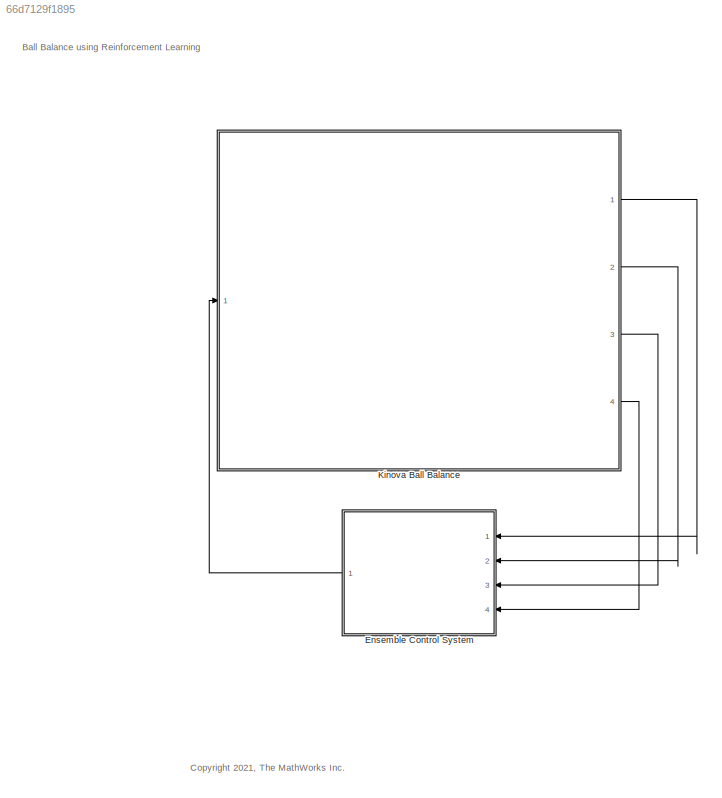
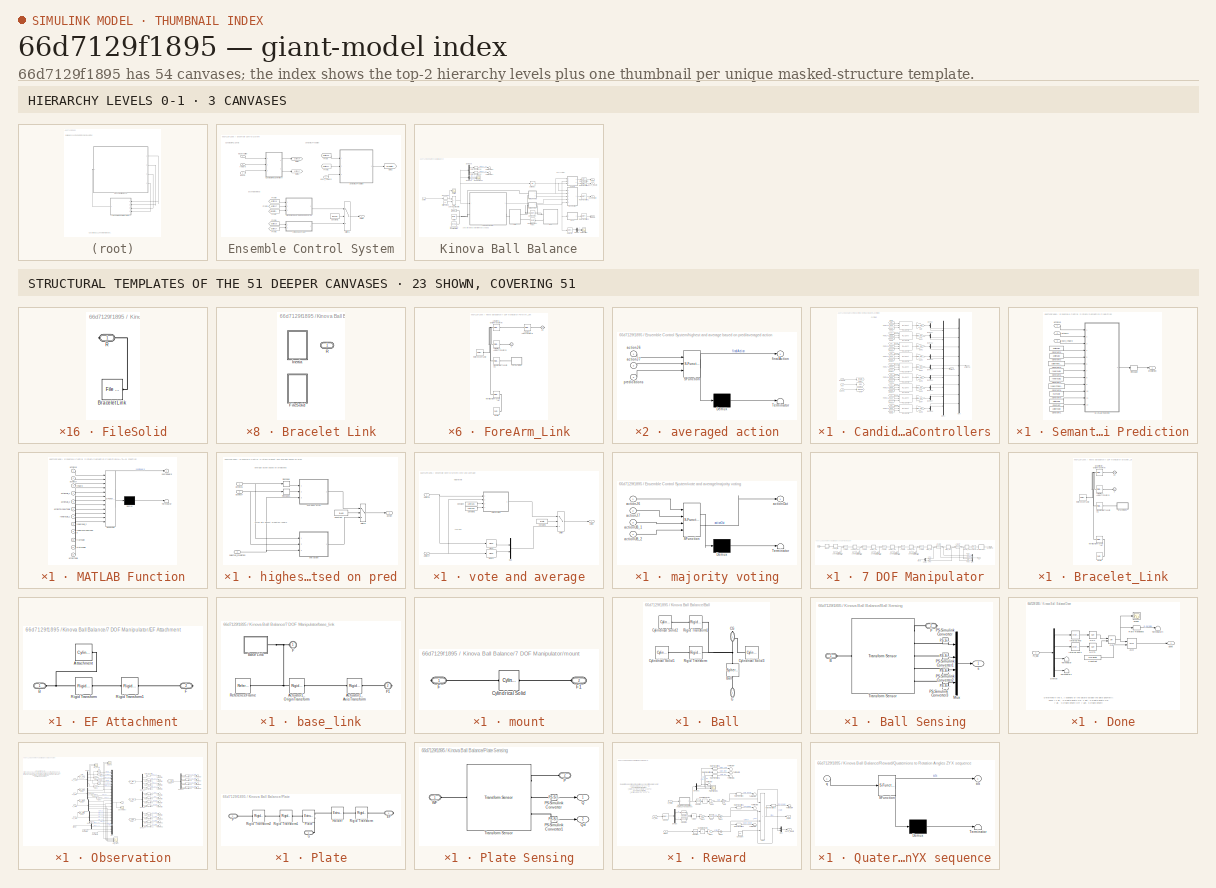
[diagram: thumbnail index - top-2 hierarchy levels (3 canvases) + 23 structural-template representatives of the remaining 51 canvases]
MODEL slx_66d7129f1895
KIND model
CONFIG AbsTol = 1e-3
CONFIG EnableMultiTasking = off
CONFIG FixedStep = auto
CONFIG MaxStep = auto
CONFIG MinStep = auto
CONFIG PreLoadFcn = Jdamping = 1e-4;
CONFIG RelTol = 1e-2
CONFIG SampleTimeConstraint = Unconstrained
CONFIG SolverName = ode15s
CONFIG StartTime = 0.0
CONFIG StopTime = 10.0
BLOCK [SubSystem] Ensemble Control System
  Ports = [4, 1]
  RequestExecContextInheritance = off
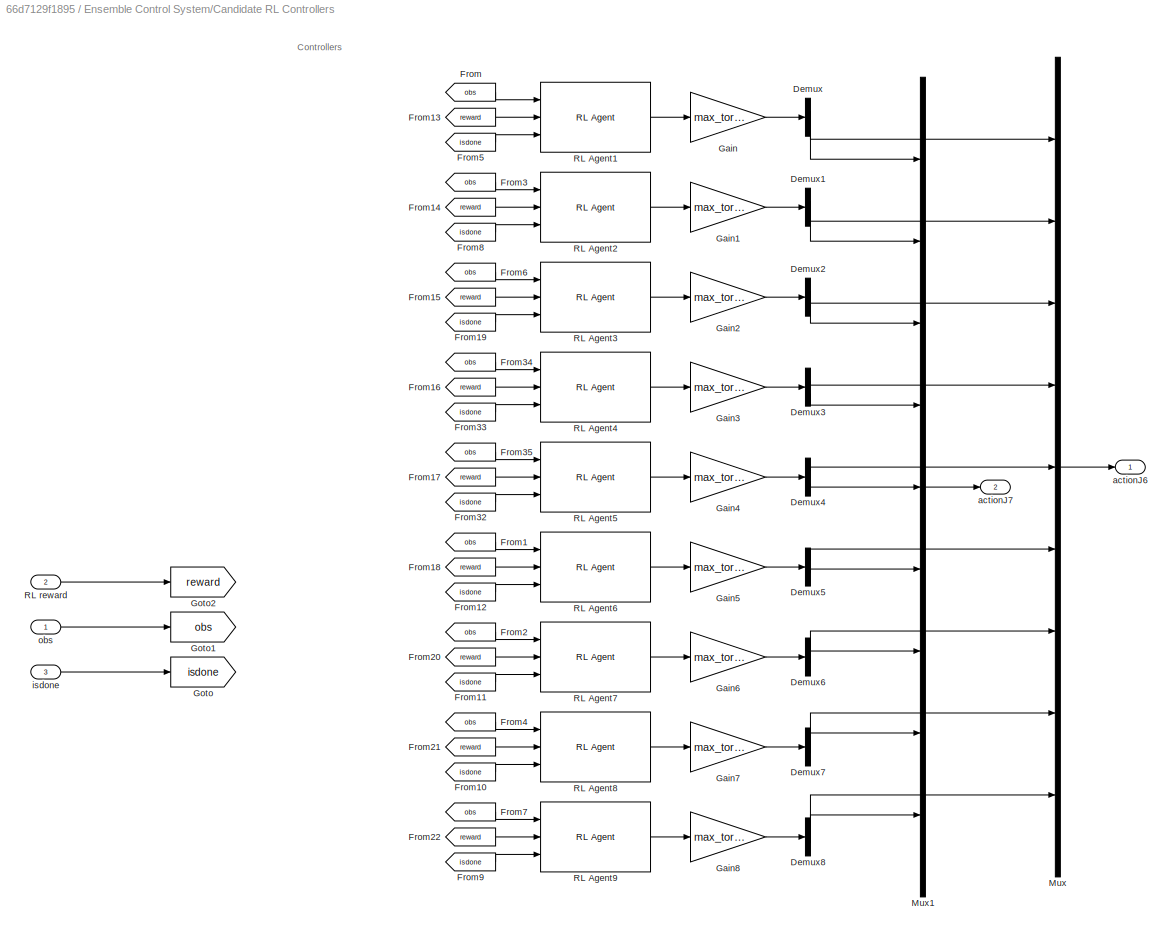
BLOCK [SubSystem] Ensemble Control System/Candidate RL Controllers
  Ports = [3, 2]
  RequestExecContextInheritance = off
BLOCK [Demux] Ensemble Control System/Candidate RL Controllers/Demux
  Outputs = 2
  Ports = [1, 2]
BLOCK [Demux] Ensemble Control System/Candidate RL Controllers/Demux1
  Outputs = 2
  Ports = [1, 2]
BLOCK [Demux] Ensemble Control System/Candidate RL Controllers/Demux2
  Outputs = 2
  Ports = [1, 2]
BLOCK [Demux] Ensemble Control System/Candidate RL Controllers/Demux3
  Outputs = 2
  Ports = [1, 2]
BLOCK [Demux] Ensemble Control System/Candidate RL Controllers/Demux4
  Outputs = 2
  Ports = [1, 2]
BLOCK [Demux] Ensemble Control System/Candidate RL Controllers/Demux5
  Outputs = 2
  Ports = [1, 2]
BLOCK [Demux] Ensemble Control System/Candidate RL Controllers/Demux6
  Outputs = 2
  Ports = [1, 2]
BLOCK [Demux] Ensemble Control System/Candidate RL Controllers/Demux7
  Outputs = 2
  Ports = [1, 2]
BLOCK [Demux] Ensemble Control System/Candidate RL Controllers/Demux8
  Outputs = 2
  Ports = [1, 2]
BLOCK [From] Ensemble Control System/Candidate RL Controllers/From
  GotoTag = obs
BLOCK [From] Ensemble Control System/Candidate RL Controllers/From1
  GotoTag = obs
BLOCK [From] Ensemble Control System/Candidate RL Controllers/From10
  GotoTag = isdone
BLOCK [From] Ensemble Control System/Candidate RL Controllers/From11
  GotoTag = isdone
BLOCK [From] Ensemble Control System/Candidate RL Controllers/From12
  GotoTag = isdone
BLOCK [From] Ensemble Control System/Candidate RL Controllers/From13
  GotoTag = reward
BLOCK [From] Ensemble Control System/Candidate RL Controllers/From14
  GotoTag = reward
BLOCK [From] Ensemble Control System/Candidate RL Controllers/From15
  GotoTag = reward
BLOCK [From] Ensemble Control System/Candidate RL Controllers/From16
  GotoTag = reward
BLOCK [From] Ensemble Control System/Candidate RL Controllers/From17
  GotoTag = reward
BLOCK [From] Ensemble Control System/Candidate RL Controllers/From18
  GotoTag = reward
BLOCK [From] Ensemble Control System/Candidate RL Controllers/From19
  GotoTag = isdone
BLOCK [From] Ensemble Control System/Candidate RL Controllers/From2
  GotoTag = obs
BLOCK [From] Ensemble Control System/Candidate RL Controllers/From20
  GotoTag = reward
BLOCK [From] Ensemble Control System/Candidate RL Controllers/From21
  GotoTag = reward
BLOCK [From] Ensemble Control System/Candidate RL Controllers/From22
  GotoTag = reward
BLOCK [From] Ensemble Control System/Candidate RL Controllers/From3
  GotoTag = obs
BLOCK [From] Ensemble Control System/Candidate RL Controllers/From32
  GotoTag = isdone
BLOCK [From] Ensemble Control System/Candidate RL Controllers/From33
  GotoTag = isdone
BLOCK [From] Ensemble Control System/Candidate RL Controllers/From34
  GotoTag = obs
BLOCK [From] Ensemble Control System/Candidate RL Controllers/From35
  GotoTag = obs
BLOCK [From] Ensemble Control System/Candidate RL Controllers/From4
  GotoTag = obs
BLOCK [From] Ensemble Control System/Candidate RL Controllers/From5
  GotoTag = isdone
BLOCK [From] Ensemble Control System/Candidate RL Controllers/From6
  GotoTag = obs
BLOCK [From] Ensemble Control System/Candidate RL Controllers/From7
  GotoTag = obs
BLOCK [From] Ensemble Control System/Candidate RL Controllers/From8
  GotoTag = isdone
BLOCK [From] Ensemble Control System/Candidate RL Controllers/From9
  GotoTag = isdone
BLOCK [Gain] Ensemble Control System/Candidate RL Controllers/Gain
  Gain = max_torque
BLOCK [Gain] Ensemble Control System/Candidate RL Controllers/Gain1
  Gain = max_torque
BLOCK [Gain] Ensemble Control System/Candidate RL Controllers/Gain2
  Gain = max_torque
BLOCK [Gain] Ensemble Control System/Candidate RL Controllers/Gain3
  Gain = max_torque
BLOCK [Gain] Ensemble Control System/Candidate RL Controllers/Gain4
  Gain = max_torque
BLOCK [Gain] Ensemble Control System/Candidate RL Controllers/Gain5
  Gain = max_torque
BLOCK [Gain] Ensemble Control System/Candidate RL Controllers/Gain6
  Gain = max_torque
BLOCK [Gain] Ensemble Control System/Candidate RL Controllers/Gain7
  Gain = max_torque
BLOCK [Gain] Ensemble Control System/Candidate RL Controllers/Gain8
  Gain = max_torque
BLOCK [Goto] Ensemble Control System/Candidate RL Controllers/Goto
  GotoTag = isdone
BLOCK [Goto] Ensemble Control System/Candidate RL Controllers/Goto1
  GotoTag = obs
BLOCK [Goto] Ensemble Control System/Candidate RL Controllers/Goto2
  GotoTag = reward
BLOCK [Mux] Ensemble Control System/Candidate RL Controllers/Mux
  DisplayOption = bar
  Inputs = 9
  Ports = [9, 1]
BLOCK [Mux] Ensemble Control System/Candidate RL Controllers/Mux1
  DisplayOption = bar
  Inputs = 9
  Ports = [9, 1]
BLOCK [Reference] Ensemble Control System/Candidate RL Controllers/RL Agent1  REF=rllib/RL Agent
  Ports = [3, 1]
  SourceBlock = rllib/RL Agent
  SourceProductBaseCode = RL
  SourceType = RL Agent
BLOCK [Reference] Ensemble Control System/Candidate RL Controllers/RL Agent2  REF=rllib/RL Agent
  Ports = [3, 1]
  SourceBlock = rllib/RL Agent
  SourceProductBaseCode = RL
  SourceType = RL Agent
BLOCK [Reference] Ensemble Control System/Candidate RL Controllers/RL Agent3  REF=rllib/RL Agent
  Ports = [3, 1]
  SourceBlock = rllib/RL Agent
  SourceProductBaseCode = RL
  SourceType = RL Agent
BLOCK [Reference] Ensemble Control System/Candidate RL Controllers/RL Agent4  REF=rllib/RL Agent
  Ports = [3, 1]
  SourceBlock = rllib/RL Agent
  SourceProductBaseCode = RL
  SourceType = RL Agent
BLOCK [Reference] Ensemble Control System/Candidate RL Controllers/RL Agent5  REF=rllib/RL Agent
  Ports = [3, 1]
  SourceBlock = rllib/RL Agent
  SourceProductBaseCode = RL
  SourceType = RL Agent
BLOCK [Reference] Ensemble Control System/Candidate RL Controllers/RL Agent6  REF=rllib/RL Agent
  Ports = [3, 1]
  SourceBlock = rllib/RL Agent
  SourceProductBaseCode = RL
  SourceType = RL Agent
BLOCK [Reference] Ensemble Control System/Candidate RL Controllers/RL Agent7  REF=rllib/RL Agent
  Ports = [3, 1]
  SourceBlock = rllib/RL Agent
  SourceProductBaseCode = RL
  SourceType = RL Agent
BLOCK [Reference] Ensemble Control System/Candidate RL Controllers/RL Agent8  REF=rllib/RL Agent
  Ports = [3, 1]
  SourceBlock = rllib/RL Agent
  SourceProductBaseCode = RL
  SourceType = RL Agent
BLOCK [Reference] Ensemble Control System/Candidate RL Controllers/RL Agent9  REF=rllib/RL Agent
  Ports = [3, 1]
  SourceBlock = rllib/RL Agent
  SourceProductBaseCode = RL
  SourceType = RL Agent
BLOCK [Inport] Ensemble Control System/Candidate RL Controllers/RL reward
  Port = 2
BLOCK [Outport] Ensemble Control System/Candidate RL Controllers/actionJ6
BLOCK [Outport] Ensemble Control System/Candidate RL Controllers/actionJ7
  Port = 2
BLOCK [Inport] Ensemble Control System/Candidate RL Controllers/isdone
  Port = 3
BLOCK [Inport] Ensemble Control System/Candidate RL Controllers/obs
BLOCK [Constant] Ensemble Control System/Constant1
  Value = isPred
BLOCK [From] Ensemble Control System/From
  GotoTag = actionJ6
BLOCK [From] Ensemble Control System/From1
  GotoTag = actionJ7
BLOCK [From] Ensemble Control System/From2
  GotoTag = actionJ7
BLOCK [From] Ensemble Control System/From3
  GotoTag = actionJ7
BLOCK [From] Ensemble Control System/From4
  GotoTag = actionJ6
BLOCK [From] Ensemble Control System/From7
  GotoTag = predictions
BLOCK [From] Ensemble Control System/From9
  GotoTag = actionJ6
BLOCK [Goto] Ensemble Control System/Goto1
  GotoTag = actionJ7
BLOCK [Goto] Ensemble Control System/Goto2
  GotoTag = predictions
BLOCK [Goto] Ensemble Control System/Goto7
  GotoTag = actionJ6
BLOCK [SubSystem] Ensemble Control System/Semantics Prediction
  Ports = [3, 1]
  RequestExecContextInheritance = off
BLOCK [Constant] Ensemble Control System/Semantics Prediction/Constant
  Value = stateTable
BLOCK [Constant] Ensemble Control System/Semantics Prediction/Constant1
  Value = actionTable
BLOCK [Constant] Ensemble Control System/Semantics Prediction/Constant2
  Value = actionUB2
BLOCK [Constant] Ensemble Control System/Semantics Prediction/Constant3
  Value = actionToIndex
BLOCK [Constant] Ensemble Control System/Semantics Prediction/Constant5
  Value = actionUB1
BLOCK [Constant] Ensemble Control System/Semantics Prediction/Constant6
  Value = rewardUB1
BLOCK [Constant] Ensemble Control System/Semantics Prediction/Constant7
  Value = rewardUB2
BLOCK [Constant] Ensemble Control System/Semantics Prediction/Constant8
  Value = rewardToIndex
BLOCK [Constant] Ensemble Control System/Semantics Prediction/Constant9
  Value = tranTable
BLOCK [SubSystem] Ensemble Control System/Semantics Prediction/MATLAB Function
  ErrorFcn = Stateflow.Translate.translate
  PermitHierarchicalResolution = ExplicitOnly
  Ports = [12, 1]
  RequestExecContextInheritance = off
  SFBlockType = MATLAB Function
  TreatAsAtomicUnit = on
BLOCK [Demux] Ensemble Control System/Semantics Prediction/MATLAB Function/ Demux 
  Outputs = 1
  Ports = [1, 1]
BLOCK [S-Function] Ensemble Control System/Semantics Prediction/MATLAB Function/ SFunction 
  EnableBusSupport = on
  FunctionName = sf_sfun
  PortCounts = [12 2]
  Ports = [12, 2]
  SFcnIsStateOwnerBlock = off
  SFunctionDeploymentMode = off
  Tag = Stateflow S-Function 12
BLOCK [Terminator] Ensemble Control System/Semantics Prediction/MATLAB Function/ Terminator 
BLOCK [Inport] Ensemble Control System/Semantics Prediction/MATLAB Function/actionJ6
BLOCK [Inport] Ensemble Control System/Semantics Prediction/MATLAB Function/actionJ7
  Port = 2
BLOCK [Inport] Ensemble Control System/Semantics Prediction/MATLAB Function/actionTable
  Port = 12
BLOCK [Inport] Ensemble Control System/Semantics Prediction/MATLAB Function/actionToIndexTable
  Port = 6
BLOCK [Inport] Ensemble Control System/Semantics Prediction/MATLAB Function/actionUB_1
  Port = 4
BLOCK [Inport] Ensemble Control System/Semantics Prediction/MATLAB Function/actionUB_2
  Port = 5
BLOCK [Outport] Ensemble Control System/Semantics Prediction/MATLAB Function/nextReward
BLOCK [Inport] Ensemble Control System/Semantics Prediction/MATLAB Function/reward
  Port = 3
BLOCK [Inport] Ensemble Control System/Semantics Prediction/MATLAB Function/rewardToIndexTable
  Port = 9
BLOCK [Inport] Ensemble Control System/Semantics Prediction/MATLAB Function/rewardUB_1
  Port = 7
BLOCK [Inport] Ensemble Control System/Semantics Prediction/MATLAB Function/rewardUB_2
  Port = 8
BLOCK [Inport] Ensemble Control System/Semantics Prediction/MATLAB Function/stateTable
  Port = 11
BLOCK [Inport] Ensemble Control System/Semantics Prediction/MATLAB Function/tranTable
  Port = 10
BLOCK [Reshape] Ensemble Control System/Semantics Prediction/Reshape
  Ports = [1, 1]
BLOCK [Inport] Ensemble Control System/Semantics Prediction/actionJ6
BLOCK [Inport] Ensemble Control System/Semantics Prediction/actionJ7
  Port = 2
BLOCK [Inport] Ensemble Control System/Semantics Prediction/each_reward
  Port = 3
BLOCK [Outport] Ensemble Control System/Semantics Prediction/prediction
BLOCK [Switch] Ensemble Control System/Switch1
  Criteria = u2 > Threshold
  InputSameDT = off
  SaturateOnIntegerOverflow = off
BLOCK [Outport] Ensemble Control System/action
BLOCK [Inport] Ensemble Control System/each_reward
  Port = 4
BLOCK [SubSystem] Ensemble Control System/highest and average based on pred
  Ports = [3, 1]
  RequestExecContextInheritance = off
BLOCK [Constant] Ensemble Control System/highest and average based on pred/Constant
  Value = isAvg
BLOCK [Reshape] Ensemble Control System/highest and average based on pred/Reshape
  OutputDimensionality = Column vector (2-D)
  Ports = [1, 1]
BLOCK [Reshape] Ensemble Control System/highest and average based on pred/Reshape1
  OutputDimensionality = Column vector (2-D)
  Ports = [1, 1]
BLOCK [Switch] Ensemble Control System/highest and average based on pred/Switch
  Criteria = u2 > Threshold
  InputSameDT = off
  SaturateOnIntegerOverflow = off
BLOCK [Outport] Ensemble Control System/highest and average based on pred/action
BLOCK [Inport] Ensemble Control System/highest and average based on pred/actionJ6
BLOCK [Inport] Ensemble Control System/highest and average based on pred/actionJ7
  Port = 2
BLOCK [SubSystem] Ensemble Control System/highest and average based on pred/averaged action
  ErrorFcn = Stateflow.Translate.translate
  PermitHierarchicalResolution = ExplicitOnly
  Ports = [3, 1]
  RequestExecContextInheritance = off
  SFBlockType = MATLAB Function
  TreatAsAtomicUnit = on
BLOCK [Demux] Ensemble Control System/highest and average based on pred/averaged action/ Demux 
  Outputs = 1
  Ports = [1, 1]
BLOCK [S-Function] Ensemble Control System/highest and average based on pred/averaged action/ SFunction 
  EnableBusSupport = on
  FunctionName = sf_sfun
  PortCounts = [3 2]
  Ports = [3, 2]
  SFcnIsStateOwnerBlock = off
  SFunctionDeploymentMode = off
  Tag = Stateflow S-Function 14
BLOCK [Terminator] Ensemble Control System/highest and average based on pred/averaged action/ Terminator 
BLOCK [Inport] Ensemble Control System/highest and average based on pred/averaged action/actionJ6
BLOCK [Inport] Ensemble Control System/highest and average based on pred/averaged action/actionJ7
  Port = 2
BLOCK [Outport] Ensemble Control System/highest and average based on pred/averaged action/finalAction
BLOCK [Inport] Ensemble Control System/highest and average based on pred/averaged action/predications
  Port = 3
BLOCK [SubSystem] Ensemble Control System/highest and average based on pred/one action
  ErrorFcn = Stateflow.Translate.translate
  PermitHierarchicalResolution = ExplicitOnly
  Ports = [3, 1]
  RequestExecContextInheritance = off
  SFBlockType = MATLAB Function
  TreatAsAtomicUnit = on
BLOCK [Demux] Ensemble Control System/highest and average based on pred/one action/ Demux 
  Outputs = 1
  Ports = [1, 1]
BLOCK [S-Function] Ensemble Control System/highest and average based on pred/one action/ SFunction 
  EnableBusSupport = on
  FunctionName = sf_sfun
  PortCounts = [3 2]
  Ports = [3, 2]
  SFcnIsStateOwnerBlock = off
  SFunctionDeploymentMode = off
  Tag = Stateflow S-Function 15
BLOCK [Terminator] Ensemble Control System/highest and average based on pred/one action/ Terminator 
BLOCK [Inport] Ensemble Control System/highest and average based on pred/one action/actionJ6
BLOCK [Inport] Ensemble Control System/highest and average based on pred/one action/actionJ7
  Port = 2
BLOCK [Outport] Ensemble Control System/highest and average based on pred/one action/finalAction
BLOCK [Inport] Ensemble Control System/highest and average based on pred/one action/predications
  Port = 3
BLOCK [Inport] Ensemble Control System/highest and average based on pred/selected_prediction
  Port = 3
BLOCK [Inport] Ensemble Control System/isdone
  Port = 3
BLOCK [Inport] Ensemble Control System/observation
BLOCK [Inport] Ensemble Control System/reward
  Port = 2
BLOCK [SubSystem] Ensemble Control System/vote and average
  Ports = [2, 1]
  RequestExecContextInheritance = off
BLOCK [Constant] Ensemble Control System/vote and average/Constant
  Value = actionUB1
BLOCK [Constant] Ensemble Control System/vote and average/Constant1
  Value = isVote
BLOCK [Constant] Ensemble Control System/vote and average/Constant2
  Value = actionUB2
BLOCK [Reference] Ensemble Control System/vote and average/Mean  REF=dspstat3/Mean
  Ports = [1, 1]
  SourceBlock = dspstat3/Mean
  SourceProductBaseCode = DS
  SourceType = Mean
  UserDataPersistent = on
BLOCK [Reference] Ensemble Control System/vote and average/Mean1  REF=dspstat3/Mean
  Ports = [1, 1]
  SourceBlock = dspstat3/Mean
  SourceProductBaseCode = DS
  SourceType = Mean
  UserDataPersistent = on
BLOCK [Mux] Ensemble Control System/vote and average/Mux
  DisplayOption = bar
  Inputs = 2
  Ports = [2, 1]
BLOCK [Switch] Ensemble Control System/vote and average/Switch
  Criteria = u2 > Threshold
  InputSameDT = off
  SaturateOnIntegerOverflow = off
BLOCK [Outport] Ensemble Control System/vote and average/action
BLOCK [Inport] Ensemble Control System/vote and average/actionJ6
BLOCK [Inport] Ensemble Control System/vote and average/actionJ7
  Port = 2
BLOCK [SubSystem] Ensemble Control System/vote and average/majority voting
  ErrorFcn = Stateflow.Translate.translate
  PermitHierarchicalResolution = ExplicitOnly
  Ports = [4, 1]
  RequestExecContextInheritance = off
  SFBlockType = MATLAB Function
  TreatAsAtomicUnit = on
BLOCK [Demux] Ensemble Control System/vote and average/majority voting/ Demux 
  Outputs = 1
  Ports = [1, 1]
BLOCK [S-Function] Ensemble Control System/vote and average/majority voting/ SFunction 
  EnableBusSupport = on
  FunctionName = sf_sfun
  PortCounts = [4 2]
  Ports = [4, 2]
  SFcnIsStateOwnerBlock = off
  SFunctionDeploymentMode = off
  Tag = Stateflow S-Function 13
BLOCK [Terminator] Ensemble Control System/vote and average/majority voting/ Terminator 
BLOCK [Inport] Ensemble Control System/vote and average/majority voting/actionJ6
BLOCK [Inport] Ensemble Control System/vote and average/majority voting/actionJ7
  Port = 2
BLOCK [Outport] Ensemble Control System/vote and average/majority voting/actionOut
BLOCK [Inport] Ensemble Control System/vote and average/majority voting/actionUB_1
  Port = 3
BLOCK [Inport] Ensemble Control System/vote and average/majority voting/actionUB_2
  Port = 4
BLOCK [SubSystem] Kinova Ball Balance
  Ports = [1, 4]
  RequestExecContextInheritance = off
BLOCK [Reference] Kinova Ball Balance/6-DOF Joint  REF=sm_lib/Joints/6-DOF Joint
  Ports = [0, 0, 0, 0, 0, 1, 1]
  SourceBlock = sm_lib/Joints/6-DOF Joint
  SourceProductBaseCode = MS
  SourceType = 6-DOF Joint
BLOCK [SubSystem] Kinova Ball Balance/7 DOF Manipulator
  Ports = [1, 1, 0, 0, 0, 1, 1]
  RequestExecContextInheritance = off
BLOCK [Reference] Kinova Ball Balance/7 DOF Manipulator/Actuator1  REF=sm_lib/Joints/Revolute Joint
  Ports = [0, 0, 0, 0, 0, 2, 1]
  SourceBlock = sm_lib/Joints/Revolute Joint
  SourceProductBaseCode = MS
  SourceType = Revolute Joint
BLOCK [Reference] Kinova Ball Balance/7 DOF Manipulator/Actuator2  REF=sm_lib/Joints/Revolute Joint
  Ports = [0, 0, 0, 0, 0, 2, 1]
  SourceBlock = sm_lib/Joints/Revolute Joint
  SourceProductBaseCode = MS
  SourceType = Revolute Joint
BLOCK [Reference] Kinova Ball Balance/7 DOF Manipulator/Actuator3  REF=sm_lib/Joints/Revolute Joint
  Ports = [0, 0, 0, 0, 0, 2, 1]
  SourceBlock = sm_lib/Joints/Revolute Joint
  SourceProductBaseCode = MS
  SourceType = Revolute Joint
BLOCK [Reference] Kinova Ball Balance/7 DOF Manipulator/Actuator4  REF=sm_lib/Joints/Revolute Joint
  Ports = [0, 0, 0, 0, 0, 2, 1]
  SourceBlock = sm_lib/Joints/Revolute Joint
  SourceProductBaseCode = MS
  SourceType = Revolute Joint
BLOCK [Reference] Kinova Ball Balance/7 DOF Manipulator/Actuator5  REF=sm_lib/Joints/Revolute Joint
  Ports = [0, 0, 0, 0, 0, 2, 1]
  SourceBlock = sm_lib/Joints/Revolute Joint
  SourceProductBaseCode = MS
  SourceType = Revolute Joint
BLOCK [Reference] Kinova Ball Balance/7 DOF Manipulator/Actuator6  REF=sm_lib/Joints/Revolute Joint
  Ports = [0, 0, 0, 0, 0, 2, 3]
  SourceBlock = sm_lib/Joints/Revolute Joint
  SourceProductBaseCode = MS
  SourceType = Revolute Joint
BLOCK [Reference] Kinova Ball Balance/7 DOF Manipulator/Actuator7  REF=sm_lib/Joints/Revolute Joint
  Ports = [0, 0, 0, 0, 0, 2, 3]
  SourceBlock = sm_lib/Joints/Revolute Joint
  SourceProductBaseCode = MS
  SourceType = Revolute Joint
BLOCK [SubSystem] Kinova Ball Balance/7 DOF Manipulator/Bracelet_Link
  Ports = [0, 0, 0, 0, 0, 1, 1]
  RequestExecContextInheritance = off
BLOCK [Reference] Kinova Ball Balance/7 DOF Manipulator/Bracelet_Link/Actuator7_AxisInvTransform  REF=sm_lib/Frames and
Transforms/Rigid
Transform
  Ports = [0, 0, 0, 0, 0, 1, 1]
  SourceBlock = sm_lib/Frames and\nTransforms/Rigid\nTransform
  SourceProductBaseCode = MS
  SourceType = Rigid\nTransform
BLOCK [SubSystem] Kinova Ball Balance/7 DOF Manipulator/Bracelet_Link/Bracelet Link
  LabelModeActiveChoice = Choice
  Ports = [0, 0, 0, 0, 0, 0, 1]
  RequestExecContextInheritance = off
  Variant = on
  VariantControl = Choice
  VariantControlMode = label
BLOCK [SubSystem] Kinova Ball Balance/7 DOF Manipulator/Bracelet_Link/Bracelet Link/FileSolid
  Ports = [0, 0, 0, 0, 0, 0, 1]
  RequestExecContextInheritance = off
  VariantControl = Choice_1
BLOCK [Reference] Kinova Ball Balance/7 DOF Manipulator/Bracelet_Link/Bracelet Link/FileSolid/Bracelet Link  REF=sm_lib/Body Elements/File Solid
  Ports = [0, 0, 0, 0, 0, 0, 1]
  SourceBlock = sm_lib/Body Elements/File Solid
  SourceProductBaseCode = MS
  SourceType = File Solid
BLOCK [PMIOPort] Kinova Ball Balance/7 DOF Manipulator/Bracelet_Link/Bracelet Link/FileSolid/R
  Side = Right
BLOCK [SubSystem] Kinova Ball Balance/7 DOF Manipulator/Bracelet_Link/Bracelet Link/Inertia
  Ports = [0, 0, 0, 0, 0, 0, 1]
  RequestExecContextInheritance = off
  VariantControl = Choice
BLOCK [Reference] Kinova Ball Balance/7 DOF Manipulator/Bracelet_Link/Bracelet Link/Inertia/Inertia1  REF=sm_lib/Body Elements/Inertia
  Ports = [0, 0, 0, 0, 0, 0, 1]
  SourceBlock = sm_lib/Body Elements/Inertia
  SourceProductBaseCode = MS
  SourceType = Inertia
BLOCK [PMIOPort] Kinova Ball Balance/7 DOF Manipulator/Bracelet_Link/Bracelet Link/Inertia/R
  Side = Right
BLOCK [PMIOPort] Kinova Ball Balance/7 DOF Manipulator/Bracelet_Link/Bracelet Link/R
  Side = Right
BLOCK [Reference] Kinova Ball Balance/7 DOF Manipulator/Bracelet_Link/Endeffector_OriginTransform  REF=sm_lib/Frames and
Transforms/Rigid
Transform
  Ports = [0, 0, 0, 0, 0, 1, 1]
  SourceBlock = sm_lib/Frames and\nTransforms/Rigid\nTransform
  SourceProductBaseCode = MS
  SourceType = Rigid\nTransform
BLOCK [PMIOPort] Kinova Ball Balance/7 DOF Manipulator/Bracelet_Link/F
  Side = Left
BLOCK [PMIOPort] Kinova Ball Balance/7 DOF Manipulator/Bracelet_Link/F1
  Port = 2
  Side = Right
BLOCK [Reference] Kinova Ball Balance/7 DOF Manipulator/Bracelet_Link/Inertia  REF=sm_lib/Body Elements/Inertia
  Ports = [0, 0, 0, 0, 0, 0, 1]
  SourceBlock = sm_lib/Body Elements/Inertia
  SourceProductBaseCode = MS
  SourceType = Inertia
BLOCK [Reference] Kinova Ball Balance/7 DOF Manipulator/Bracelet_Link/InertiaOriginTransform  REF=sm_lib/Frames and
Transforms/Rigid
Transform
  Ports = [0, 0, 0, 0, 0, 1, 1]
  SourceBlock = sm_lib/Frames and\nTransforms/Rigid\nTransform
  SourceProductBaseCode = MS
  SourceType = Rigid\nTransform
BLOCK [Reference] Kinova Ball Balance/7 DOF Manipulator/Bracelet_Link/ReferenceFrame  REF=sm_lib/Frames and
Transforms/Reference
Frame
  Ports = [0, 0, 0, 0, 0, 0, 1]
  SourceBlock = sm_lib/Frames and\nTransforms/Reference\nFrame
  SourceProductBaseCode = MS
  SourceType = Reference\nFrame
BLOCK [Reference] Kinova Ball Balance/7 DOF Manipulator/Bracelet_Link/VisualOriginTransform  REF=sm_lib/Frames and
Transforms/Rigid
Transform
  Ports = [0, 0, 0, 0, 0, 1, 1]
  SourceBlock = sm_lib/Frames and\nTransforms/Rigid\nTransform
  SourceProductBaseCode = MS
  SourceType = Rigid\nTransform
BLOCK [Constant] Kinova Ball Balance/7 DOF Manipulator/Constant
  Value = R1_q0
BLOCK [Constant] Kinova Ball Balance/7 DOF Manipulator/Constant1
  Value = R2_q0
BLOCK [Constant] Kinova Ball Balance/7 DOF Manipulator/Constant2
  Value = R3_q0
BLOCK [Constant] Kinova Ball Balance/7 DOF Manipulator/Constant3
  Value = R4_q0
BLOCK [Constant] Kinova Ball Balance/7 DOF Manipulator/Constant4
  Value = R5_q0
BLOCK [Demux] Kinova Ball Balance/7 DOF Manipulator/Demux
  Outputs = 2
  Ports = [1, 2]
BLOCK [SubSystem] Kinova Ball Balance/7 DOF Manipulator/EF Attachment
  Ports = [0, 0, 0, 0, 0, 1, 1]
  RequestExecContextInheritance = off
BLOCK [Reference] Kinova Ball Balance/7 DOF Manipulator/EF Attachment/Attachment  REF=sm_lib/Body Elements/Cylindrical Solid
  Ports = [0, 0, 0, 0, 0, 0, 1]
  SourceBlock = sm_lib/Body Elements/Cylindrical Solid
  SourceProductBaseCode = MS
  SourceType = Cylindrical Solid
BLOCK [PMIOPort] Kinova Ball Balance/7 DOF Manipulator/EF Attachment/B
  Side = Left
BLOCK [PMIOPort] Kinova Ball Balance/7 DOF Manipulator/EF Attachment/F
  Port = 2
  Side = Right
BLOCK [Reference] Kinova Ball Balance/7 DOF Manipulator/EF Attachment/Rigid Transform  REF=sm_lib/Frames and
Transforms/Rigid
Transform
  Ports = [0, 0, 0, 0, 0, 1, 1]
  SourceBlock = sm_lib/Frames and\nTransforms/Rigid\nTransform
  SourceProductBaseCode = MS
  SourceType = Rigid\nTransform
BLOCK [Reference] Kinova Ball Balance/7 DOF Manipulator/EF Attachment/Rigid Transform1  REF=sm_lib/Frames and
Transforms/Rigid
Transform
  Ports = [0, 0, 0, 0, 0, 1, 1]
  SourceBlock = sm_lib/Frames and\nTransforms/Rigid\nTransform
  SourceProductBaseCode = MS
  SourceType = Rigid\nTransform
BLOCK [PMIOPort] Kinova Ball Balance/7 DOF Manipulator/End Effector
  Port = 2
  Side = Right
BLOCK [Reference] Kinova Ball Balance/7 DOF Manipulator/Endeffector  REF=sm_lib/Joints/Weld Joint
  Ports = [0, 0, 0, 0, 0, 1, 1]
  SourceBlock = sm_lib/Joints/Weld Joint
  SourceProductBaseCode = MS
  SourceType = Weld Joint
BLOCK [SubSystem] Kinova Ball Balance/7 DOF Manipulator/ForeArm_Link
  Ports = [0, 0, 0, 0, 0, 1, 1]
  RequestExecContextInheritance = off
BLOCK [Reference] Kinova Ball Balance/7 DOF Manipulator/ForeArm_Link/Actuator4_AxisInvTransform  REF=sm_lib/Frames and
Transforms/Rigid
Transform
  Ports = [0, 0, 0, 0, 0, 1, 1]
  SourceBlock = sm_lib/Frames and\nTransforms/Rigid\nTransform
  SourceProductBaseCode = MS
  SourceType = Rigid\nTransform
BLOCK [Reference] Kinova Ball Balance/7 DOF Manipulator/ForeArm_Link/Actuator5_AxisTransform  REF=sm_lib/Frames and
Transforms/Rigid
Transform
  Ports = [0, 0, 0, 0, 0, 1, 1]
  SourceBlock = sm_lib/Frames and\nTransforms/Rigid\nTransform
  SourceProductBaseCode = MS
  SourceType = Rigid\nTransform
BLOCK [Reference] Kinova Ball Balance/7 DOF Manipulator/ForeArm_Link/Actuator5_OriginTransform  REF=sm_lib/Frames and
Transforms/Rigid
Transform
  Ports = [0, 0, 0, 0, 0, 1, 1]
  SourceBlock = sm_lib/Frames and\nTransforms/Rigid\nTransform
  SourceProductBaseCode = MS
  SourceType = Rigid\nTransform
BLOCK [PMIOPort] Kinova Ball Balance/7 DOF Manipulator/ForeArm_Link/F
  Side = Left
BLOCK [PMIOPort] Kinova Ball Balance/7 DOF Manipulator/ForeArm_Link/F1
  Port = 2
  Side = Right
BLOCK [SubSystem] Kinova Ball Balance/7 DOF Manipulator/ForeArm_Link/ForeArm Link
  LabelModeActiveChoice = Choice
  Ports = [0, 0, 0, 0, 0, 0, 1]
  RequestExecContextInheritance = off
  Variant = on
  VariantControl = Choice
  VariantControlMode = label
BLOCK [SubSystem] Kinova Ball Balance/7 DOF Manipulator/ForeArm_Link/ForeArm Link/FileSolid
  Ports = [0, 0, 0, 0, 0, 0, 1]
  RequestExecContextInheritance = off
  VariantControl = Choice_1
BLOCK [Reference] Kinova Ball Balance/7 DOF Manipulator/ForeArm_Link/ForeArm Link/FileSolid/Forearm Link  REF=sm_lib/Body Elements/File Solid
  Ports = [0, 0, 0, 0, 0, 0, 1]
  SourceBlock = sm_lib/Body Elements/File Solid
  SourceProductBaseCode = MS
  SourceType = File Solid
BLOCK [PMIOPort] Kinova Ball Balance/7 DOF Manipulator/ForeArm_Link/ForeArm Link/FileSolid/R
  Side = Right
BLOCK [SubSystem] Kinova Ball Balance/7 DOF Manipulator/ForeArm_Link/ForeArm Link/Inertia
  Ports = [0, 0, 0, 0, 0, 0, 1]
  RequestExecContextInheritance = off
  VariantControl = Choice
BLOCK [Reference] Kinova Ball Balance/7 DOF Manipulator/ForeArm_Link/ForeArm Link/Inertia/Inertia1  REF=sm_lib/Body Elements/Inertia
  Ports = [0, 0, 0, 0, 0, 0, 1]
  SourceBlock = sm_lib/Body Elements/Inertia
  SourceProductBaseCode = MS
  SourceType = Inertia
BLOCK [PMIOPort] Kinova Ball Balance/7 DOF Manipulator/ForeArm_Link/ForeArm Link/Inertia/R
  Side = Right
BLOCK [PMIOPort] Kinova Ball Balance/7 DOF Manipulator/ForeArm_Link/ForeArm Link/R
  Side = Right
BLOCK [Reference] Kinova Ball Balance/7 DOF Manipulator/ForeArm_Link/Inertia  REF=sm_lib/Body Elements/Inertia
  Ports = [0, 0, 0, 0, 0, 0, 1]
  SourceBlock = sm_lib/Body Elements/Inertia
  SourceProductBaseCode = MS
  SourceType = Inertia
BLOCK [Reference] Kinova Ball Balance/7 DOF Manipulator/ForeArm_Link/InertiaOriginTransform  REF=sm_lib/Frames and
Transforms/Rigid
Transform
  Ports = [0, 0, 0, 0, 0, 1, 1]
  SourceBlock = sm_lib/Frames and\nTransforms/Rigid\nTransform
  SourceProductBaseCode = MS
  SourceType = Rigid\nTransform
BLOCK [Reference] Kinova Ball Balance/7 DOF Manipulator/ForeArm_Link/ReferenceFrame  REF=sm_lib/Frames and
Transforms/Reference
Frame
  Ports = [0, 0, 0, 0, 0, 0, 1]
  SourceBlock = sm_lib/Frames and\nTransforms/Reference\nFrame
  SourceProductBaseCode = MS
  SourceType = Reference\nFrame
BLOCK [Reference] Kinova Ball Balance/7 DOF Manipulator/ForeArm_Link/VisualOriginTransform  REF=sm_lib/Frames and
Transforms/Rigid
Transform
  Ports = [0, 0, 0, 0, 0, 1, 1]
  SourceBlock = sm_lib/Frames and\nTransforms/Rigid\nTransform
  SourceProductBaseCode = MS
  SourceType = Rigid\nTransform
BLOCK [SubSystem] Kinova Ball Balance/7 DOF Manipulator/HalfArm1_Link
  Ports = [0, 0, 0, 0, 0, 1, 1]
  RequestExecContextInheritance = off
BLOCK [Reference] Kinova Ball Balance/7 DOF Manipulator/HalfArm1_Link/Actuator2_AxisInvTransform  REF=sm_lib/Frames and
Transforms/Rigid
Transform
  Ports = [0, 0, 0, 0, 0, 1, 1]
  SourceBlock = sm_lib/Frames and\nTransforms/Rigid\nTransform
  SourceProductBaseCode = MS
  SourceType = Rigid\nTransform
BLOCK [Reference] Kinova Ball Balance/7 DOF Manipulator/HalfArm1_Link/Actuator3_AxisTransform  REF=sm_lib/Frames and
Transforms/Rigid
Transform
  Ports = [0, 0, 0, 0, 0, 1, 1]
  SourceBlock = sm_lib/Frames and\nTransforms/Rigid\nTransform
  SourceProductBaseCode = MS
  SourceType = Rigid\nTransform
BLOCK [Reference] Kinova Ball Balance/7 DOF Manipulator/HalfArm1_Link/Actuator3_OriginTransform  REF=sm_lib/Frames and
Transforms/Rigid
Transform
  Ports = [0, 0, 0, 0, 0, 1, 1]
  SourceBlock = sm_lib/Frames and\nTransforms/Rigid\nTransform
  SourceProductBaseCode = MS
  SourceType = Rigid\nTransform
BLOCK [PMIOPort] Kinova Ball Balance/7 DOF Manipulator/HalfArm1_Link/F
  Side = Left
BLOCK [PMIOPort] Kinova Ball Balance/7 DOF Manipulator/HalfArm1_Link/F1
  Port = 2
  Side = Right
BLOCK [SubSystem] Kinova Ball Balance/7 DOF Manipulator/HalfArm1_Link/HalfArm1 Link
  LabelModeActiveChoice = Choice
  Ports = [0, 0, 0, 0, 0, 0, 1]
  RequestExecContextInheritance = off
  Variant = on
  VariantControl = Choice
  VariantControlMode = label
BLOCK [SubSystem] Kinova Ball Balance/7 DOF Manipulator/HalfArm1_Link/HalfArm1 Link/FileSolid
  Ports = [0, 0, 0, 0, 0, 0, 1]
  RequestExecContextInheritance = off
  VariantControl = Choice_1
BLOCK [Reference] Kinova Ball Balance/7 DOF Manipulator/HalfArm1_Link/HalfArm1 Link/FileSolid/Half Arm1 Link  REF=sm_lib/Body Elements/File Solid
  Ports = [0, 0, 0, 0, 0, 0, 1]
  SourceBlock = sm_lib/Body Elements/File Solid
  SourceProductBaseCode = MS
  SourceType = File Solid
BLOCK [PMIOPort] Kinova Ball Balance/7 DOF Manipulator/HalfArm1_Link/HalfArm1 Link/FileSolid/R
  Side = Right
BLOCK [SubSystem] Kinova Ball Balance/7 DOF Manipulator/HalfArm1_Link/HalfArm1 Link/Inertia
  Ports = [0, 0, 0, 0, 0, 0, 1]
  RequestExecContextInheritance = off
  VariantControl = Choice
BLOCK [Reference] Kinova Ball Balance/7 DOF Manipulator/HalfArm1_Link/HalfArm1 Link/Inertia/Inertia1  REF=sm_lib/Body Elements/Inertia
  Ports = [0, 0, 0, 0, 0, 0, 1]
  SourceBlock = sm_lib/Body Elements/Inertia
  SourceProductBaseCode = MS
  SourceType = Inertia
BLOCK [PMIOPort] Kinova Ball Balance/7 DOF Manipulator/HalfArm1_Link/HalfArm1 Link/Inertia/R
  Side = Right
BLOCK [PMIOPort] Kinova Ball Balance/7 DOF Manipulator/HalfArm1_Link/HalfArm1 Link/R
  Side = Right
BLOCK [Reference] Kinova Ball Balance/7 DOF Manipulator/HalfArm1_Link/Inertia  REF=sm_lib/Body Elements/Inertia
  Ports = [0, 0, 0, 0, 0, 0, 1]
  SourceBlock = sm_lib/Body Elements/Inertia
  SourceProductBaseCode = MS
  SourceType = Inertia
BLOCK [Reference] Kinova Ball Balance/7 DOF Manipulator/HalfArm1_Link/InertiaOriginTransform  REF=sm_lib/Frames and
Transforms/Rigid
Transform
  Ports = [0, 0, 0, 0, 0, 1, 1]
  SourceBlock = sm_lib/Frames and\nTransforms/Rigid\nTransform
  SourceProductBaseCode = MS
  SourceType = Rigid\nTransform
BLOCK [Reference] Kinova Ball Balance/7 DOF Manipulator/HalfArm1_Link/ReferenceFrame  REF=sm_lib/Frames and
Transforms/Reference
Frame
  Ports = [0, 0, 0, 0, 0, 0, 1]
  SourceBlock = sm_lib/Frames and\nTransforms/Reference\nFrame
  SourceProductBaseCode = MS
  SourceType = Reference\nFrame
BLOCK [Reference] Kinova Ball Balance/7 DOF Manipulator/HalfArm1_Link/VisualOriginTransform  REF=sm_lib/Frames and
Transforms/Rigid
Transform
  Ports = [0, 0, 0, 0, 0, 1, 1]
  SourceBlock = sm_lib/Frames and\nTransforms/Rigid\nTransform
  SourceProductBaseCode = MS
  SourceType = Rigid\nTransform
BLOCK [SubSystem] Kinova Ball Balance/7 DOF Manipulator/HalfArm2_Link
  Ports = [0, 0, 0, 0, 0, 1, 1]
  RequestExecContextInheritance = off
BLOCK [Reference] Kinova Ball Balance/7 DOF Manipulator/HalfArm2_Link/Actuator3_AxisInvTransform  REF=sm_lib/Frames and
Transforms/Rigid
Transform
  Ports = [0, 0, 0, 0, 0, 1, 1]
  SourceBlock = sm_lib/Frames and\nTransforms/Rigid\nTransform
  SourceProductBaseCode = MS
  SourceType = Rigid\nTransform
BLOCK [Reference] Kinova Ball Balance/7 DOF Manipulator/HalfArm2_Link/Actuator4_AxisTransform  REF=sm_lib/Frames and
Transforms/Rigid
Transform
  Ports = [0, 0, 0, 0, 0, 1, 1]
  SourceBlock = sm_lib/Frames and\nTransforms/Rigid\nTransform
  SourceProductBaseCode = MS
  SourceType = Rigid\nTransform
BLOCK [Reference] Kinova Ball Balance/7 DOF Manipulator/HalfArm2_Link/Actuator4_OriginTransform  REF=sm_lib/Frames and
Transforms/Rigid
Transform
  Ports = [0, 0, 0, 0, 0, 1, 1]
  SourceBlock = sm_lib/Frames and\nTransforms/Rigid\nTransform
  SourceProductBaseCode = MS
  SourceType = Rigid\nTransform
BLOCK [PMIOPort] Kinova Ball Balance/7 DOF Manipulator/HalfArm2_Link/F
  Side = Left
BLOCK [PMIOPort] Kinova Ball Balance/7 DOF Manipulator/HalfArm2_Link/F1
  Port = 2
  Side = Right
BLOCK [SubSystem] Kinova Ball Balance/7 DOF Manipulator/HalfArm2_Link/HalfArm2 Link
  LabelModeActiveChoice = Choice
  Ports = [0, 0, 0, 0, 0, 0, 1]
  RequestExecContextInheritance = off
  Variant = on
  VariantControl = Choice
  VariantControlMode = label
BLOCK [SubSystem] Kinova Ball Balance/7 DOF Manipulator/HalfArm2_Link/HalfArm2 Link/FileSolid
  Ports = [0, 0, 0, 0, 0, 0, 1]
  RequestExecContextInheritance = off
  VariantControl = Choice_1
BLOCK [Reference] Kinova Ball Balance/7 DOF Manipulator/HalfArm2_Link/HalfArm2 Link/FileSolid/Half Arm2 Link  REF=sm_lib/Body Elements/File Solid
  Ports = [0, 0, 0, 0, 0, 0, 1]
  SourceBlock = sm_lib/Body Elements/File Solid
  SourceProductBaseCode = MS
  SourceType = File Solid
BLOCK [PMIOPort] Kinova Ball Balance/7 DOF Manipulator/HalfArm2_Link/HalfArm2 Link/FileSolid/R
  Side = Right
BLOCK [SubSystem] Kinova Ball Balance/7 DOF Manipulator/HalfArm2_Link/HalfArm2 Link/Inertia
  Ports = [0, 0, 0, 0, 0, 0, 1]
  RequestExecContextInheritance = off
  VariantControl = Choice
BLOCK [Reference] Kinova Ball Balance/7 DOF Manipulator/HalfArm2_Link/HalfArm2 Link/Inertia/Inertia1  REF=sm_lib/Body Elements/Inertia
  Ports = [0, 0, 0, 0, 0, 0, 1]
  SourceBlock = sm_lib/Body Elements/Inertia
  SourceProductBaseCode = MS
  SourceType = Inertia
BLOCK [PMIOPort] Kinova Ball Balance/7 DOF Manipulator/HalfArm2_Link/HalfArm2 Link/Inertia/R
  Side = Right
BLOCK [PMIOPort] Kinova Ball Balance/7 DOF Manipulator/HalfArm2_Link/HalfArm2 Link/R
  Side = Right
BLOCK [Reference] Kinova Ball Balance/7 DOF Manipulator/HalfArm2_Link/Inertia  REF=sm_lib/Body Elements/Inertia
  Ports = [0, 0, 0, 0, 0, 0, 1]
  SourceBlock = sm_lib/Body Elements/Inertia
  SourceProductBaseCode = MS
  SourceType = Inertia
BLOCK [Reference] Kinova Ball Balance/7 DOF Manipulator/HalfArm2_Link/InertiaOriginTransform  REF=sm_lib/Frames and
Transforms/Rigid
Transform
  Ports = [0, 0, 0, 0, 0, 1, 1]
  SourceBlock = sm_lib/Frames and\nTransforms/Rigid\nTransform
  SourceProductBaseCode = MS
  SourceType = Rigid\nTransform
BLOCK [Reference] Kinova Ball Balance/7 DOF Manipulator/HalfArm2_Link/ReferenceFrame  REF=sm_lib/Frames and
Transforms/Reference
Frame
  Ports = [0, 0, 0, 0, 0, 0, 1]
  SourceBlock = sm_lib/Frames and\nTransforms/Reference\nFrame
  SourceProductBaseCode = MS
  SourceType = Reference\nFrame
BLOCK [Reference] Kinova Ball Balance/7 DOF Manipulator/HalfArm2_Link/VisualOriginTransform  REF=sm_lib/Frames and
Transforms/Rigid
Transform
  Ports = [0, 0, 0, 0, 0, 1, 1]
  SourceBlock = sm_lib/Frames and\nTransforms/Rigid\nTransform
  SourceProductBaseCode = MS
  SourceType = Rigid\nTransform
BLOCK [Mux] Kinova Ball Balance/7 DOF Manipulator/Mux
  DisplayOption = bar
  Ports = [4, 1]
BLOCK [Reference] Kinova Ball Balance/7 DOF Manipulator/PSS10  REF=nesl_utility/PS-Simulink
Converter
  NameLocation = top
  Ports = [0, 1, 0, 0, 0, 1]
  SourceBlock = nesl_utility/PS-Simulink\nConverter
  SourceProductBaseCode = SS,PW,VE
  SourceType = PS-Simulink\nConverter
BLOCK [Reference] Kinova Ball Balance/7 DOF Manipulator/PSS6  REF=nesl_utility/PS-Simulink
Converter
  NameLocation = top
  Ports = [0, 1, 0, 0, 0, 1]
  SourceBlock = nesl_utility/PS-Simulink\nConverter
  SourceProductBaseCode = SS,PW,VE
  SourceType = PS-Simulink\nConverter
BLOCK [Reference] Kinova Ball Balance/7 DOF Manipulator/PSS7  REF=nesl_utility/PS-Simulink
Converter
  NameLocation = top
  Ports = [0, 1, 0, 0, 0, 1]
  SourceBlock = nesl_utility/PS-Simulink\nConverter
  SourceProductBaseCode = SS,PW,VE
  SourceType = PS-Simulink\nConverter
BLOCK [Reference] Kinova Ball Balance/7 DOF Manipulator/PSS9  REF=nesl_utility/PS-Simulink
Converter
  NameLocation = top
  Ports = [0, 1, 0, 0, 0, 1]
  SourceBlock = nesl_utility/PS-Simulink\nConverter
  SourceProductBaseCode = SS,PW,VE
  SourceType = PS-Simulink\nConverter
BLOCK [Outport] Kinova Ball Balance/7 DOF Manipulator/PV
  NameLocation = top
BLOCK [Reference] Kinova Ball Balance/7 DOF Manipulator/SPS6  REF=nesl_utility/Simulink-PS
Converter
  NameLocation = top
  Ports = [1, 0, 0, 0, 0, 0, 1]
  SourceBlock = nesl_utility/Simulink-PS\nConverter
  SourceProductBaseCode = SS,PW,VE
  SourceType = Simulink-PS\nConverter
BLOCK [Reference] Kinova Ball Balance/7 DOF Manipulator/SPS7  REF=nesl_utility/Simulink-PS
Converter
  NameLocation = top
  Ports = [1, 0, 0, 0, 0, 0, 1]
  SourceBlock = nesl_utility/Simulink-PS\nConverter
  SourceProductBaseCode = SS,PW,VE
  SourceType = Simulink-PS\nConverter
BLOCK [SubSystem] Kinova Ball Balance/7 DOF Manipulator/Shoulder_Link
  Ports = [0, 0, 0, 0, 0, 1, 1]
  RequestExecContextInheritance = off
BLOCK [Reference] Kinova Ball Balance/7 DOF Manipulator/Shoulder_Link/Actuator1_AxisInvTransform  REF=sm_lib/Frames and
Transforms/Rigid
Transform
  Ports = [0, 0, 0, 0, 0, 1, 1]
  SourceBlock = sm_lib/Frames and\nTransforms/Rigid\nTransform
  SourceProductBaseCode = MS
  SourceType = Rigid\nTransform
BLOCK [Reference] Kinova Ball Balance/7 DOF Manipulator/Shoulder_Link/Actuator2_AxisTransform  REF=sm_lib/Frames and
Transforms/Rigid
Transform
  Ports = [0, 0, 0, 0, 0, 1, 1]
  SourceBlock = sm_lib/Frames and\nTransforms/Rigid\nTransform
  SourceProductBaseCode = MS
  SourceType = Rigid\nTransform
BLOCK [Reference] Kinova Ball Balance/7 DOF Manipulator/Shoulder_Link/Actuator2_OriginTransform  REF=sm_lib/Frames and
Transforms/Rigid
Transform
  Ports = [0, 0, 0, 0, 0, 1, 1]
  SourceBlock = sm_lib/Frames and\nTransforms/Rigid\nTransform
  SourceProductBaseCode = MS
  SourceType = Rigid\nTransform
BLOCK [PMIOPort] Kinova Ball Balance/7 DOF Manipulator/Shoulder_Link/F
  Side = Left
BLOCK [PMIOPort] Kinova Ball Balance/7 DOF Manipulator/Shoulder_Link/F1
  Port = 2
  Side = Right
BLOCK [Reference] Kinova Ball Balance/7 DOF Manipulator/Shoulder_Link/Inertia  REF=sm_lib/Body Elements/Inertia
  Ports = [0, 0, 0, 0, 0, 0, 1]
  SourceBlock = sm_lib/Body Elements/Inertia
  SourceProductBaseCode = MS
  SourceType = Inertia
BLOCK [Reference] Kinova Ball Balance/7 DOF Manipulator/Shoulder_Link/InertiaOriginTransform  REF=sm_lib/Frames and
Transforms/Rigid
Transform
  Ports = [0, 0, 0, 0, 0, 1, 1]
  SourceBlock = sm_lib/Frames and\nTransforms/Rigid\nTransform
  SourceProductBaseCode = MS
  SourceType = Rigid\nTransform
BLOCK [Reference] Kinova Ball Balance/7 DOF Manipulator/Shoulder_Link/ReferenceFrame  REF=sm_lib/Frames and
Transforms/Reference
Frame
  Ports = [0, 0, 0, 0, 0, 0, 1]
  SourceBlock = sm_lib/Frames and\nTransforms/Reference\nFrame
  SourceProductBaseCode = MS
  SourceType = Reference\nFrame
BLOCK [SubSystem] Kinova Ball Balance/7 DOF Manipulator/Shoulder_Link/Shoulder Link
  LabelModeActiveChoice = Choice
  Ports = [0, 0, 0, 0, 0, 0, 1]
  RequestExecContextInheritance = off
  Variant = on
  VariantControl = Choice
  VariantControlMode = label
BLOCK [SubSystem] Kinova Ball Balance/7 DOF Manipulator/Shoulder_Link/Shoulder Link/FileSolid
  Ports = [0, 0, 0, 0, 0, 0, 1]
  RequestExecContextInheritance = off
  VariantControl = Choice_1
BLOCK [PMIOPort] Kinova Ball Balance/7 DOF Manipulator/Shoulder_Link/Shoulder Link/FileSolid/R
  Side = Right
BLOCK [Reference] Kinova Ball Balance/7 DOF Manipulator/Shoulder_Link/Shoulder Link/FileSolid/Shoulder Link  REF=sm_lib/Body Elements/File Solid
  Ports = [0, 0, 0, 0, 0, 0, 1]
  SourceBlock = sm_lib/Body Elements/File Solid
  SourceProductBaseCode = MS
  SourceType = File Solid
BLOCK [SubSystem] Kinova Ball Balance/7 DOF Manipulator/Shoulder_Link/Shoulder Link/Inertia
  Ports = [0, 0, 0, 0, 0, 0, 1]
  RequestExecContextInheritance = off
  VariantControl = Choice
BLOCK [Reference] Kinova Ball Balance/7 DOF Manipulator/Shoulder_Link/Shoulder Link/Inertia/Inertia1  REF=sm_lib/Body Elements/Inertia
  Ports = [0, 0, 0, 0, 0, 0, 1]
  SourceBlock = sm_lib/Body Elements/Inertia
  SourceProductBaseCode = MS
  SourceType = Inertia
BLOCK [PMIOPort] Kinova Ball Balance/7 DOF Manipulator/Shoulder_Link/Shoulder Link/Inertia/R
  Side = Right
BLOCK [PMIOPort] Kinova Ball Balance/7 DOF Manipulator/Shoulder_Link/Shoulder Link/R
  Side = Right
BLOCK [Reference] Kinova Ball Balance/7 DOF Manipulator/Shoulder_Link/VisualOriginTransform  REF=sm_lib/Frames and
Transforms/Rigid
Transform
  Ports = [0, 0, 0, 0, 0, 1, 1]
  SourceBlock = sm_lib/Frames and\nTransforms/Rigid\nTransform
  SourceProductBaseCode = MS
  SourceType = Rigid\nTransform
BLOCK [Reference] Kinova Ball Balance/7 DOF Manipulator/Simulink-PS Converter  REF=nesl_utility/Simulink-PS
Converter
  Ports = [1, 0, 0, 0, 0, 0, 1]
  SourceBlock = nesl_utility/Simulink-PS\nConverter
  SourceProductBaseCode = SS,PW,VE
  SourceType = Simulink-PS\nConverter
BLOCK [Reference] Kinova Ball Balance/7 DOF Manipulator/Simulink-PS Converter1  REF=nesl_utility/Simulink-PS
Converter
  Ports = [1, 0, 0, 0, 0, 0, 1]
  SourceBlock = nesl_utility/Simulink-PS\nConverter
  SourceProductBaseCode = SS,PW,VE
  SourceType = Simulink-PS\nConverter
BLOCK [Reference] Kinova Ball Balance/7 DOF Manipulator/Simulink-PS Converter2  REF=nesl_utility/Simulink-PS
Converter
  Ports = [1, 0, 0, 0, 0, 0, 1]
  SourceBlock = nesl_utility/Simulink-PS\nConverter
  SourceProductBaseCode = SS,PW,VE
  SourceType = Simulink-PS\nConverter
BLOCK [Reference] Kinova Ball Balance/7 DOF Manipulator/Simulink-PS Converter3  REF=nesl_utility/Simulink-PS
Converter
  Ports = [1, 0, 0, 0, 0, 0, 1]
  SourceBlock = nesl_utility/Simulink-PS\nConverter
  SourceProductBaseCode = SS,PW,VE
  SourceType = Simulink-PS\nConverter
BLOCK [Reference] Kinova Ball Balance/7 DOF Manipulator/Simulink-PS Converter4  REF=nesl_utility/Simulink-PS
Converter
  Ports = [1, 0, 0, 0, 0, 0, 1]
  SourceBlock = nesl_utility/Simulink-PS\nConverter
  SourceProductBaseCode = SS,PW,VE
  SourceType = Simulink-PS\nConverter
BLOCK [PMIOPort] Kinova Ball Balance/7 DOF Manipulator/World
  Side = Left
BLOCK [SubSystem] Kinova Ball Balance/7 DOF Manipulator/Wrist1_Link
  Ports = [0, 0, 0, 0, 0, 1, 1]
  RequestExecContextInheritance = off
BLOCK [Reference] Kinova Ball Balance/7 DOF Manipulator/Wrist1_Link/Actuator5_AxisInvTransform  REF=sm_lib/Frames and
Transforms/Rigid
Transform
  Ports = [0, 0, 0, 0, 0, 1, 1]
  SourceBlock = sm_lib/Frames and\nTransforms/Rigid\nTransform
  SourceProductBaseCode = MS
  SourceType = Rigid\nTransform
BLOCK [Reference] Kinova Ball Balance/7 DOF Manipulator/Wrist1_Link/Actuator6_AxisTransform  REF=sm_lib/Frames and
Transforms/Rigid
Transform
  Ports = [0, 0, 0, 0, 0, 1, 1]
  SourceBlock = sm_lib/Frames and\nTransforms/Rigid\nTransform
  SourceProductBaseCode = MS
  SourceType = Rigid\nTransform
BLOCK [Reference] Kinova Ball Balance/7 DOF Manipulator/Wrist1_Link/Actuator6_OriginTransform  REF=sm_lib/Frames and
Transforms/Rigid
Transform
  Ports = [0, 0, 0, 0, 0, 1, 1]
  SourceBlock = sm_lib/Frames and\nTransforms/Rigid\nTransform
  SourceProductBaseCode = MS
  SourceType = Rigid\nTransform
BLOCK [PMIOPort] Kinova Ball Balance/7 DOF Manipulator/Wrist1_Link/F
  Side = Left
BLOCK [PMIOPort] Kinova Ball Balance/7 DOF Manipulator/Wrist1_Link/F1
  Port = 2
  Side = Right
BLOCK [Reference] Kinova Ball Balance/7 DOF Manipulator/Wrist1_Link/Inertia  REF=sm_lib/Body Elements/Inertia
  Ports = [0, 0, 0, 0, 0, 0, 1]
  SourceBlock = sm_lib/Body Elements/Inertia
  SourceProductBaseCode = MS
  SourceType = Inertia
BLOCK [Reference] Kinova Ball Balance/7 DOF Manipulator/Wrist1_Link/InertiaOriginTransform  REF=sm_lib/Frames and
Transforms/Rigid
Transform
  Ports = [0, 0, 0, 0, 0, 1, 1]
  SourceBlock = sm_lib/Frames and\nTransforms/Rigid\nTransform
  SourceProductBaseCode = MS
  SourceType = Rigid\nTransform
BLOCK [Reference] Kinova Ball Balance/7 DOF Manipulator/Wrist1_Link/ReferenceFrame  REF=sm_lib/Frames and
Transforms/Reference
Frame
  Ports = [0, 0, 0, 0, 0, 0, 1]
  SourceBlock = sm_lib/Frames and\nTransforms/Reference\nFrame
  SourceProductBaseCode = MS
  SourceType = Reference\nFrame
BLOCK [Reference] Kinova Ball Balance/7 DOF Manipulator/Wrist1_Link/VisualOriginTransform  REF=sm_lib/Frames and
Transforms/Rigid
Transform
  Ports = [0, 0, 0, 0, 0, 1, 1]
  SourceBlock = sm_lib/Frames and\nTransforms/Rigid\nTransform
  SourceProductBaseCode = MS
  SourceType = Rigid\nTransform
BLOCK [SubSystem] Kinova Ball Balance/7 DOF Manipulator/Wrist1_Link/Wrist1 Link
  LabelModeActiveChoice = Choice
  Ports = [0, 0, 0, 0, 0, 0, 1]
  RequestExecContextInheritance = off
  Variant = on
  VariantControl = Choice
  VariantControlMode = label
BLOCK [SubSystem] Kinova Ball Balance/7 DOF Manipulator/Wrist1_Link/Wrist1 Link/FileSolid
  Ports = [0, 0, 0, 0, 0, 0, 1]
  RequestExecContextInheritance = off
  VariantControl = Choice_1
BLOCK [PMIOPort] Kinova Ball Balance/7 DOF Manipulator/Wrist1_Link/Wrist1 Link/FileSolid/R
  Side = Right
BLOCK [Reference] Kinova Ball Balance/7 DOF Manipulator/Wrist1_Link/Wrist1 Link/FileSolid/Wrist1 Link  REF=sm_lib/Body Elements/File Solid
  Ports = [0, 0, 0, 0, 0, 0, 1]
  SourceBlock = sm_lib/Body Elements/File Solid
  SourceProductBaseCode = MS
  SourceType = File Solid
BLOCK [SubSystem] Kinova Ball Balance/7 DOF Manipulator/Wrist1_Link/Wrist1 Link/Inertia
  Ports = [0, 0, 0, 0, 0, 0, 1]
  RequestExecContextInheritance = off
  VariantControl = Choice
BLOCK [Reference] Kinova Ball Balance/7 DOF Manipulator/Wrist1_Link/Wrist1 Link/Inertia/Inertia1  REF=sm_lib/Body Elements/Inertia
  Ports = [0, 0, 0, 0, 0, 0, 1]
  SourceBlock = sm_lib/Body Elements/Inertia
  SourceProductBaseCode = MS
  SourceType = Inertia
BLOCK [PMIOPort] Kinova Ball Balance/7 DOF Manipulator/Wrist1_Link/Wrist1 Link/Inertia/R
  Side = Right
BLOCK [PMIOPort] Kinova Ball Balance/7 DOF Manipulator/Wrist1_Link/Wrist1 Link/R
  Side = Right
BLOCK [SubSystem] Kinova Ball Balance/7 DOF Manipulator/Wrist2_Link
  Ports = [0, 0, 0, 0, 0, 1, 1]
  RequestExecContextInheritance = off
BLOCK [Reference] Kinova Ball Balance/7 DOF Manipulator/Wrist2_Link/Actuator6_AxisInvTransform  REF=sm_lib/Frames and
Transforms/Rigid
Transform
  Ports = [0, 0, 0, 0, 0, 1, 1]
  SourceBlock = sm_lib/Frames and\nTransforms/Rigid\nTransform
  SourceProductBaseCode = MS
  SourceType = Rigid\nTransform
BLOCK [Reference] Kinova Ball Balance/7 DOF Manipulator/Wrist2_Link/Actuator7_AxisTransform  REF=sm_lib/Frames and
Transforms/Rigid
Transform
  Ports = [0, 0, 0, 0, 0, 1, 1]
  SourceBlock = sm_lib/Frames and\nTransforms/Rigid\nTransform
  SourceProductBaseCode = MS
  SourceType = Rigid\nTransform
BLOCK [Reference] Kinova Ball Balance/7 DOF Manipulator/Wrist2_Link/Actuator7_OriginTransform  REF=sm_lib/Frames and
Transforms/Rigid
Transform
  Ports = [0, 0, 0, 0, 0, 1, 1]
  SourceBlock = sm_lib/Frames and\nTransforms/Rigid\nTransform
  SourceProductBaseCode = MS
  SourceType = Rigid\nTransform
BLOCK [PMIOPort] Kinova Ball Balance/7 DOF Manipulator/Wrist2_Link/F
  Side = Left
BLOCK [PMIOPort] Kinova Ball Balance/7 DOF Manipulator/Wrist2_Link/F1
  Port = 2
  Side = Right
BLOCK [Reference] Kinova Ball Balance/7 DOF Manipulator/Wrist2_Link/Inertia  REF=sm_lib/Body Elements/Inertia
  Ports = [0, 0, 0, 0, 0, 0, 1]
  SourceBlock = sm_lib/Body Elements/Inertia
  SourceProductBaseCode = MS
  SourceType = Inertia
BLOCK [Reference] Kinova Ball Balance/7 DOF Manipulator/Wrist2_Link/InertiaOriginTransform  REF=sm_lib/Frames and
Transforms/Rigid
Transform
  Ports = [0, 0, 0, 0, 0, 1, 1]
  SourceBlock = sm_lib/Frames and\nTransforms/Rigid\nTransform
  SourceProductBaseCode = MS
  SourceType = Rigid\nTransform
BLOCK [Reference] Kinova Ball Balance/7 DOF Manipulator/Wrist2_Link/ReferenceFrame  REF=sm_lib/Frames and
Transforms/Reference
Frame
  Ports = [0, 0, 0, 0, 0, 0, 1]
  SourceBlock = sm_lib/Frames and\nTransforms/Reference\nFrame
  SourceProductBaseCode = MS
  SourceType = Reference\nFrame
BLOCK [Reference] Kinova Ball Balance/7 DOF Manipulator/Wrist2_Link/VisualOriginTransform  REF=sm_lib/Frames and
Transforms/Rigid
Transform
  Ports = [0, 0, 0, 0, 0, 1, 1]
  SourceBlock = sm_lib/Frames and\nTransforms/Rigid\nTransform
  SourceProductBaseCode = MS
  SourceType = Rigid\nTransform
BLOCK [SubSystem] Kinova Ball Balance/7 DOF Manipulator/Wrist2_Link/Wrist2 Link
  LabelModeActiveChoice = Choice
  Ports = [0, 0, 0, 0, 0, 0, 1]
  RequestExecContextInheritance = off
  Variant = on
  VariantControl = Choice
  VariantControlMode = label
BLOCK [SubSystem] Kinova Ball Balance/7 DOF Manipulator/Wrist2_Link/Wrist2 Link/FileSolid
  Ports = [0, 0, 0, 0, 0, 0, 1]
  RequestExecContextInheritance = off
  VariantControl = Choice_1
BLOCK [PMIOPort] Kinova Ball Balance/7 DOF Manipulator/Wrist2_Link/Wrist2 Link/FileSolid/R
  Side = Right
BLOCK [Reference] Kinova Ball Balance/7 DOF Manipulator/Wrist2_Link/Wrist2 Link/FileSolid/Wrist2 Link  REF=sm_lib/Body Elements/File Solid
  Ports = [0, 0, 0, 0, 0, 0, 1]
  SourceBlock = sm_lib/Body Elements/File Solid
  SourceProductBaseCode = MS
  SourceType = File Solid
BLOCK [SubSystem] Kinova Ball Balance/7 DOF Manipulator/Wrist2_Link/Wrist2 Link/Inertia
  Ports = [0, 0, 0, 0, 0, 0, 1]
  RequestExecContextInheritance = off
  VariantControl = Choice
BLOCK [Reference] Kinova Ball Balance/7 DOF Manipulator/Wrist2_Link/Wrist2 Link/Inertia/Inertia1  REF=sm_lib/Body Elements/Inertia
  Ports = [0, 0, 0, 0, 0, 0, 1]
  SourceBlock = sm_lib/Body Elements/Inertia
  SourceProductBaseCode = MS
  SourceType = Inertia
BLOCK [PMIOPort] Kinova Ball Balance/7 DOF Manipulator/Wrist2_Link/Wrist2 Link/Inertia/R
  Side = Right
BLOCK [PMIOPort] Kinova Ball Balance/7 DOF Manipulator/Wrist2_Link/Wrist2 Link/R
  Side = Right
BLOCK [SubSystem] Kinova Ball Balance/7 DOF Manipulator/base_link
  Ports = [0, 0, 0, 0, 0, 1, 1]
  RequestExecContextInheritance = off
BLOCK [Reference] Kinova Ball Balance/7 DOF Manipulator/base_link/Actuator1_AxisTransform  REF=sm_lib/Frames and
Transforms/Rigid
Transform
  Ports = [0, 0, 0, 0, 0, 1, 1]
  SourceBlock = sm_lib/Frames and\nTransforms/Rigid\nTransform
  SourceProductBaseCode = MS
  SourceType = Rigid\nTransform
BLOCK [Reference] Kinova Ball Balance/7 DOF Manipulator/base_link/Actuator1_OriginTransform  REF=sm_lib/Frames and
Transforms/Rigid
Transform
  Ports = [0, 0, 0, 0, 0, 1, 1]
  SourceBlock = sm_lib/Frames and\nTransforms/Rigid\nTransform
  SourceProductBaseCode = MS
  SourceType = Rigid\nTransform
BLOCK [SubSystem] Kinova Ball Balance/7 DOF Manipulator/base_link/Base Link
  LabelModeActiveChoice = Choice
  Ports = [0, 0, 0, 0, 0, 0, 1]
  RequestExecContextInheritance = off
  Variant = on
  VariantControl = Choice
  VariantControlMode = label
BLOCK [SubSystem] Kinova Ball Balance/7 DOF Manipulator/base_link/Base Link/FileSolid
  Ports = [0, 0, 0, 0, 0, 0, 1]
  RequestExecContextInheritance = off
  VariantControl = Choice_1
BLOCK [Reference] Kinova Ball Balance/7 DOF Manipulator/base_link/Base Link/FileSolid/Base Link  REF=sm_lib/Body Elements/File Solid
  Ports = [0, 0, 0, 0, 0, 0, 1]
  SourceBlock = sm_lib/Body Elements/File Solid
  SourceProductBaseCode = MS
  SourceType = File Solid
BLOCK [PMIOPort] Kinova Ball Balance/7 DOF Manipulator/base_link/Base Link/FileSolid/R
  Side = Right
BLOCK [SubSystem] Kinova Ball Balance/7 DOF Manipulator/base_link/Base Link/Inertia
  Ports = [0, 0, 0, 0, 0, 0, 1]
  RequestExecContextInheritance = off
  VariantControl = Choice
BLOCK [Reference] Kinova Ball Balance/7 DOF Manipulator/base_link/Base Link/Inertia/Inertia  REF=sm_lib/Body Elements/Inertia
  Ports = [0, 0, 0, 0, 0, 0, 1]
  SourceBlock = sm_lib/Body Elements/Inertia
  SourceProductBaseCode = MS
  SourceType = Inertia
BLOCK [PMIOPort] Kinova Ball Balance/7 DOF Manipulator/base_link/Base Link/Inertia/R
  Side = Right
BLOCK [PMIOPort] Kinova Ball Balance/7 DOF Manipulator/base_link/Base Link/R
  Side = Right
BLOCK [PMIOPort] Kinova Ball Balance/7 DOF Manipulator/base_link/F
  NameLocation = top
  Side = Left
BLOCK [PMIOPort] Kinova Ball Balance/7 DOF Manipulator/base_link/F1
  Port = 2
  Side = Right
BLOCK [Reference] Kinova Ball Balance/7 DOF Manipulator/base_link/ReferenceFrame  REF=sm_lib/Frames and
Transforms/Reference
Frame
  Ports = [0, 0, 0, 0, 0, 0, 1]
  SourceBlock = sm_lib/Frames and\nTransforms/Reference\nFrame
  SourceProductBaseCode = MS
  SourceType = Reference\nFrame
BLOCK [SubSystem] Kinova Ball Balance/7 DOF Manipulator/mount
  Ports = [0, 0, 0, 0, 0, 1, 1]
  RequestExecContextInheritance = off
BLOCK [Reference] Kinova Ball Balance/7 DOF Manipulator/mount/Cylindrical Solid  REF=sm_lib/Body Elements/Cylindrical Solid
  NameLocation = top
  Ports = [0, 0, 0, 0, 0, 1, 1]
  SourceBlock = sm_lib/Body Elements/Cylindrical Solid
  SourceProductBaseCode = MS
  SourceType = Cylindrical Solid
BLOCK [PMIOPort] Kinova Ball Balance/7 DOF Manipulator/mount/F
  Side = Right
BLOCK [PMIOPort] Kinova Ball Balance/7 DOF Manipulator/mount/F1
  Port = 2
  Side = Left
BLOCK [Inport] Kinova Ball Balance/7 DOF Manipulator/torque
  NameLocation = top
BLOCK [Scope] Kinova Ball Balance/Action
  Floating = off
  NumInputPorts = 1
  Ports = [1]
  ScopeSpecificationString = Simulink.scopes.TimeScopeBlockCfg('CurrentConfiguration', extmgr.ConfigurationSet(extmgr.Configuration('Core','General UI',true),extmgr.Configuration('Core','Source UI',true),extmgr.Configuration('Sources','WiredSimulink',true,'DataLoggingVariableName','ScopeData2'),extmgr.Configuration('Visuals','Time Domain',true,'SerializedDisplays',{struct('MinYLimReal','-0.31231','MaxYLimReal','0.31242','YLab...<+1438ch>
BLOCK [Sum] Kinova Ball Balance/Add
  IconShape = rectangular
  Ports = [2, 1]
BLOCK [SubSystem] Kinova Ball Balance/Ball
  Ports = [0, 0, 0, 0, 0, 0, 2]
  RequestExecContextInheritance = off
BLOCK [Scope] Kinova Ball Balance/Ball Position
  Floating = off
  NumInputPorts = 2
  Ports = [2]
  ScopeSpecificationString = Simulink.scopes.TimeScopeBlockCfg('CurrentConfiguration', extmgr.ConfigurationSet(extmgr.Configuration('Core','General UI',true),extmgr.Configuration('Core','Source UI',true),extmgr.Configuration('Sources','WiredSimulink',true,'DataLoggingVariableName','ScopeData5'),extmgr.Configuration('Visuals','Time Domain',true,'SerializedDisplays',{struct('MinYLimReal','-31.10008','MaxYLimReal','279.16943','Y...<+2075ch>
BLOCK [SubSystem] Kinova Ball Balance/Ball Sensing
  Ports = [0, 1, 0, 0, 0, 1, 1]
  RequestExecContextInheritance = off
BLOCK [PMIOPort] Kinova Ball Balance/Ball Sensing/B
  Side = Left
BLOCK [PMIOPort] Kinova Ball Balance/Ball Sensing/F
  Port = 2
  Side = Right
BLOCK [Mux] Kinova Ball Balance/Ball Sensing/Mux
  DisplayOption = bar
  Ports = [4, 1]
BLOCK [Reference] Kinova Ball Balance/Ball Sensing/PS-Simulink Converter  REF=nesl_utility/PS-Simulink
Converter
  Ports = [0, 1, 0, 0, 0, 1]
  SourceBlock = nesl_utility/PS-Simulink\nConverter
  SourceProductBaseCode = SS,PW,VE
  SourceType = PS-Simulink\nConverter
BLOCK [Reference] Kinova Ball Balance/Ball Sensing/PS-Simulink Converter1  REF=nesl_utility/PS-Simulink
Converter
  Ports = [0, 1, 0, 0, 0, 1]
  SourceBlock = nesl_utility/PS-Simulink\nConverter
  SourceProductBaseCode = SS,PW,VE
  SourceType = PS-Simulink\nConverter
BLOCK [Reference] Kinova Ball Balance/Ball Sensing/PS-Simulink Converter2  REF=nesl_utility/PS-Simulink
Converter
  Ports = [0, 1, 0, 0, 0, 1]
  SourceBlock = nesl_utility/PS-Simulink\nConverter
  SourceProductBaseCode = SS,PW,VE
  SourceType = PS-Simulink\nConverter
BLOCK [Reference] Kinova Ball Balance/Ball Sensing/PS-Simulink Converter3  REF=nesl_utility/PS-Simulink
Converter
  Ports = [0, 1, 0, 0, 0, 1]
  SourceBlock = nesl_utility/PS-Simulink\nConverter
  SourceProductBaseCode = SS,PW,VE
  SourceType = PS-Simulink\nConverter
BLOCK [Reference] Kinova Ball Balance/Ball Sensing/Transform Sensor  REF=sm_lib/Frames and
Transforms/Transform
Sensor
  Ports = [0, 0, 0, 0, 0, 1, 5]
  SourceBlock = sm_lib/Frames and\nTransforms/Transform\nSensor
  SourceProductBaseCode = MS
  SourceType = Transform\nSensor
BLOCK [Outport] Kinova Ball Balance/Ball Sensing/s
BLOCK [Reference] Kinova Ball Balance/Ball/Ball  REF=sm_lib/Body Elements/Spherical Solid
  NameLocation = left
  Ports = [0, 0, 0, 0, 0, 1, 1]
  SourceBlock = sm_lib/Body Elements/Spherical Solid
  SourceProductBaseCode = MS
  SourceType = Spherical Solid
BLOCK [PMIOPort] Kinova Ball Balance/Ball/CG
  NameLocation = right
  Side = Right
BLOCK [Reference] Kinova Ball Balance/Ball/Cylindrical Solid1  REF=sm_lib/Body Elements/Cylindrical Solid
  Ports = [0, 0, 0, 0, 0, 0, 1]
  SourceBlock = sm_lib/Body Elements/Cylindrical Solid
  SourceProductBaseCode = MS
  SourceType = Cylindrical Solid
BLOCK [Reference] Kinova Ball Balance/Ball/Cylindrical Solid2  REF=sm_lib/Body Elements/Cylindrical Solid
  Ports = [0, 0, 0, 0, 0, 0, 1]
  SourceBlock = sm_lib/Body Elements/Cylindrical Solid
  SourceProductBaseCode = MS
  SourceType = Cylindrical Solid
BLOCK [Reference] Kinova Ball Balance/Ball/Cylindrical Solid3  REF=sm_lib/Body Elements/Cylindrical Solid
  Ports = [0, 0, 0, 0, 0, 0, 1]
  SourceBlock = sm_lib/Body Elements/Cylindrical Solid
  SourceProductBaseCode = MS
  SourceType = Cylindrical Solid
BLOCK [PMIOPort] Kinova Ball Balance/Ball/G
  NameLocation = right
  Port = 2
  Side = Right
BLOCK [Reference] Kinova Ball Balance/Ball/Rigid Transform  REF=sm_lib/Frames and
Transforms/Rigid
Transform
  Ports = [0, 0, 0, 0, 0, 1, 1]
  SourceBlock = sm_lib/Frames and\nTransforms/Rigid\nTransform
  SourceProductBaseCode = MS
  SourceType = Rigid\nTransform
BLOCK [Reference] Kinova Ball Balance/Ball/Rigid Transform1  REF=sm_lib/Frames and
Transforms/Rigid
Transform
  Ports = [0, 0, 0, 0, 0, 1, 1]
  SourceBlock = sm_lib/Frames and\nTransforms/Rigid\nTransform
  SourceProductBaseCode = MS
  SourceType = Rigid\nTransform
BLOCK [Demux] Kinova Ball Balance/Demux
  Outputs = 2
  Ports = [1, 2]
BLOCK [Demux] Kinova Ball Balance/Demux2
  Outputs = 2
  Ports = [1, 2]
BLOCK [Demux] Kinova Ball Balance/Demux9
  Outputs = 2
  Ports = [1, 2]
BLOCK [SubSystem] Kinova Ball Balance/Done
  Ports = [1, 1]
  RequestExecContextInheritance = off
BLOCK [Logic] Kinova Ball Balance/Done/AND
  AllPortsSameDT = off
  IconShape = distinctive
  OutDataTypeStr = boolean
  Ports = [2, 1]
BLOCK [Constant] Kinova Ball Balance/Done/Constant
  Value = isTerminate
BLOCK [Demux] Kinova Ball Balance/Done/Demux
  Ports = [1, 4]
BLOCK [Reference] Kinova Ball Balance/Done/Interval Test  REF=simulink/Logic and Bit
Operations/Interval Test
  Ports = [1, 1]
  SourceBlock = simulink/Logic and Bit\nOperations/Interval Test
  SourceProductBaseCode = SL
  SourceType = Interval Test
BLOCK [Reference] Kinova Ball Balance/Done/Interval Test1  REF=simulink/Logic and Bit
Operations/Interval Test
  Ports = [1, 1]
  SourceBlock = simulink/Logic and Bit\nOperations/Interval Test
  SourceProductBaseCode = SL
  SourceType = Interval Test
BLOCK [Logic] Kinova Ball Balance/Done/NOT
  AllPortsSameDT = off
  IconShape = distinctive
  Operator = NOT
  OutDataTypeStr = boolean
  Ports = [1, 1]
BLOCK [Logic] Kinova Ball Balance/Done/NOT1
  AllPortsSameDT = off
  IconShape = distinctive
  Operator = NOT
  OutDataTypeStr = boolean
  Ports = [1, 1]
BLOCK [Logic] Kinova Ball Balance/Done/OR
  AllPortsSameDT = off
  IconShape = distinctive
  Operator = OR
  OutDataTypeStr = boolean
  Ports = [2, 1]
BLOCK [Inport] Kinova Ball Balance/Done/PV_Ball
BLOCK [RateTransition] Kinova Ball Balance/Done/Rate Transition3
  OutPortSampleTime = Ts_sample
BLOCK [Scope] Kinova Ball Balance/Done/Scope
  Floating = off
  NumInputPorts = 1
  Ports = [1]
  ScopeSpecificationString = Simulink.scopes.TimeScopeBlockCfg('CurrentConfiguration', extmgr.ConfigurationSet(extmgr.Configuration('Core','General UI',true),extmgr.Configuration('Core','Source UI',true),extmgr.Configuration('Sources','WiredSimulink',true,'DataLoggingVariableName','ScopeData1'),extmgr.Configuration('Visuals','Time Domain',true),extmgr.Configuration('Tools','Plot Navigation',true),extmgr.Configuration('Tools',...<+40ch>
BLOCK [Terminator] Kinova Ball Balance/Done/Terminator
BLOCK [Terminator] Kinova Ball Balance/Done/Terminator1
BLOCK [Terminator] Kinova Ball Balance/Done/Terminator4
BLOCK [Outport] Kinova Ball Balance/Done/done
BLOCK [Constant] Kinova Ball Balance/Initial Torque
  Value = U0
BLOCK [Scope] Kinova Ball Balance/Input Torques
  Floating = off
  NumInputPorts = 2
  Ports = [2]
  ScopeSpecificationString = Simulink.scopes.TimeScopeBlockCfg('CurrentConfiguration', extmgr.ConfigurationSet(extmgr.Configuration('Core','General UI',true),extmgr.Configuration('Core','Source UI',true),extmgr.Configuration('Sources','WiredSimulink',true,'DataLoggingVariableName','ScopeData4'),extmgr.Configuration('Visuals','Time Domain',true,'SerializedDisplays',{struct('MinYLimReal','-2.19381','MaxYLimReal','-1.57571','YLa...<+2107ch>
BLOCK [Reference] Kinova Ball Balance/Mechanism Configuration  REF=sm_lib/Utilities/Mechanism
Configuration
  Ports = [0, 0, 0, 0, 0, 0, 1]
  SourceBlock = sm_lib/Utilities/Mechanism\nConfiguration
  SourceProductBaseCode = MS
  SourceType = Mechanism\nConfiguration
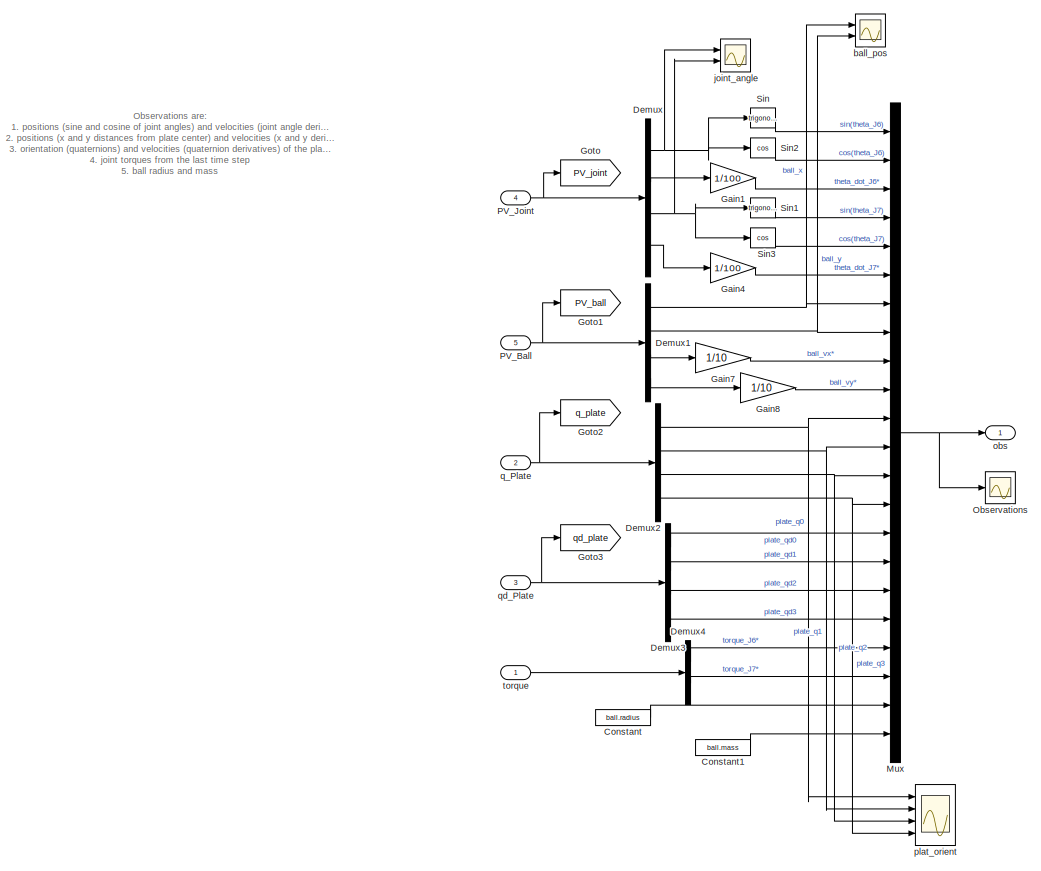
[diagram: Kinova Ball Balance/Observation - part 1/2, left side, full height]
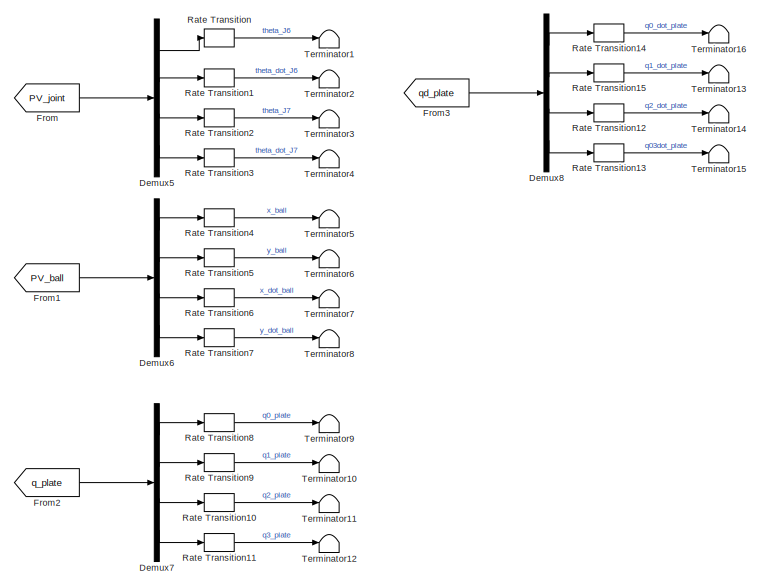
[diagram: Kinova Ball Balance/Observation - part 2/2, middle right region]
BLOCK [SubSystem] Kinova Ball Balance/Observation
  Ports = [5, 1]
  RequestExecContextInheritance = off
BLOCK [Constant] Kinova Ball Balance/Observation/Constant
  Value = ball.radius
BLOCK [Constant] Kinova Ball Balance/Observation/Constant1
  Value = ball.mass
BLOCK [Demux] Kinova Ball Balance/Observation/Demux
  Ports = [1, 4]
BLOCK [Demux] Kinova Ball Balance/Observation/Demux1
  Ports = [1, 4]
BLOCK [Demux] Kinova Ball Balance/Observation/Demux2
  Ports = [1, 4]
BLOCK [Demux] Kinova Ball Balance/Observation/Demux3
  Ports = [1, 4]
BLOCK [Demux] Kinova Ball Balance/Observation/Demux4
  Outputs = 2
  Ports = [1, 2]
BLOCK [Demux] Kinova Ball Balance/Observation/Demux5
  Ports = [1, 4]
BLOCK [Demux] Kinova Ball Balance/Observation/Demux6
  Ports = [1, 4]
BLOCK [Demux] Kinova Ball Balance/Observation/Demux7
  Ports = [1, 4]
BLOCK [Demux] Kinova Ball Balance/Observation/Demux8
  Ports = [1, 4]
BLOCK [From] Kinova Ball Balance/Observation/From
  GotoTag = PV_joint
BLOCK [From] Kinova Ball Balance/Observation/From1
  GotoTag = PV_ball
BLOCK [From] Kinova Ball Balance/Observation/From2
  GotoTag = q_plate
BLOCK [From] Kinova Ball Balance/Observation/From3
  GotoTag = qd_plate
BLOCK [Gain] Kinova Ball Balance/Observation/Gain1
  Gain = 1/100
BLOCK [Gain] Kinova Ball Balance/Observation/Gain4
  Gain = 1/100
BLOCK [Gain] Kinova Ball Balance/Observation/Gain7
  Gain = 1/10
BLOCK [Gain] Kinova Ball Balance/Observation/Gain8
  Gain = 1/10
BLOCK [Goto] Kinova Ball Balance/Observation/Goto
  GotoTag = PV_joint
BLOCK [Goto] Kinova Ball Balance/Observation/Goto1
  GotoTag = PV_ball
BLOCK [Goto] Kinova Ball Balance/Observation/Goto2
  GotoTag = q_plate
BLOCK [Goto] Kinova Ball Balance/Observation/Goto3
  GotoTag = qd_plate
BLOCK [Mux] Kinova Ball Balance/Observation/Mux
  DisplayOption = bar
  Inputs = 22
  Ports = [22, 1]
BLOCK [Scope] Kinova Ball Balance/Observation/Observations
  Floating = off
  NumInputPorts = 1
  Ports = [1]
  ScopeSpecificationString = Simulink.scopes.TimeScopeBlockCfg('CurrentConfiguration', extmgr.ConfigurationSet(extmgr.Configuration('Core','General UI',true),extmgr.Configuration('Core','Source UI',true),extmgr.Configuration('Sources','WiredSimulink',true,'DataLoggingVariableName','ScopeData1'),extmgr.Configuration('Visuals','Time Domain',true,'SerializedDisplays',{struct('MinYLimReal','-2.63055','MaxYLimReal','2.35499','YLab...<+1687ch>
BLOCK [Inport] Kinova Ball Balance/Observation/PV_Ball
  Port = 5
BLOCK [Inport] Kinova Ball Balance/Observation/PV_Joint
  Port = 4
BLOCK [RateTransition] Kinova Ball Balance/Observation/Rate Transition
  OutPortSampleTime = Ts_sample
BLOCK [RateTransition] Kinova Ball Balance/Observation/Rate Transition1
  OutPortSampleTime = Ts_sample
BLOCK [RateTransition] Kinova Ball Balance/Observation/Rate Transition10
  OutPortSampleTime = Ts_sample
BLOCK [RateTransition] Kinova Ball Balance/Observation/Rate Transition11
  OutPortSampleTime = Ts_sample
BLOCK [RateTransition] Kinova Ball Balance/Observation/Rate Transition12
  OutPortSampleTime = Ts_sample
BLOCK [RateTransition] Kinova Ball Balance/Observation/Rate Transition13
  OutPortSampleTime = Ts_sample
BLOCK [RateTransition] Kinova Ball Balance/Observation/Rate Transition14
  OutPortSampleTime = Ts_sample
BLOCK [RateTransition] Kinova Ball Balance/Observation/Rate Transition15
  OutPortSampleTime = Ts_sample
BLOCK [RateTransition] Kinova Ball Balance/Observation/Rate Transition2
  OutPortSampleTime = Ts_sample
BLOCK [RateTransition] Kinova Ball Balance/Observation/Rate Transition3
  OutPortSampleTime = Ts_sample
BLOCK [RateTransition] Kinova Ball Balance/Observation/Rate Transition4
  OutPortSampleTime = Ts_sample
BLOCK [RateTransition] Kinova Ball Balance/Observation/Rate Transition5
  OutPortSampleTime = Ts_sample
BLOCK [RateTransition] Kinova Ball Balance/Observation/Rate Transition6
  OutPortSampleTime = Ts_sample
BLOCK [RateTransition] Kinova Ball Balance/Observation/Rate Transition7
  OutPortSampleTime = Ts_sample
BLOCK [RateTransition] Kinova Ball Balance/Observation/Rate Transition8
  OutPortSampleTime = Ts_sample
BLOCK [RateTransition] Kinova Ball Balance/Observation/Rate Transition9
  OutPortSampleTime = Ts_sample
BLOCK [Trigonometry] Kinova Ball Balance/Observation/Sin
  Ports = [1, 1]
BLOCK [Trigonometry] Kinova Ball Balance/Observation/Sin1
  Ports = [1, 1]
BLOCK [Trigonometry] Kinova Ball Balance/Observation/Sin2
  Operator = cos
  Ports = [1, 1]
BLOCK [Trigonometry] Kinova Ball Balance/Observation/Sin3
  Operator = cos
  Ports = [1, 1]
BLOCK [Terminator] Kinova Ball Balance/Observation/Terminator1
BLOCK [Terminator] Kinova Ball Balance/Observation/Terminator10
BLOCK [Terminator] Kinova Ball Balance/Observation/Terminator11
BLOCK [Terminator] Kinova Ball Balance/Observation/Terminator12
BLOCK [Terminator] Kinova Ball Balance/Observation/Terminator13
BLOCK [Terminator] Kinova Ball Balance/Observation/Terminator14
BLOCK [Terminator] Kinova Ball Balance/Observation/Terminator15
BLOCK [Terminator] Kinova Ball Balance/Observation/Terminator16
BLOCK [Terminator] Kinova Ball Balance/Observation/Terminator2
BLOCK [Terminator] Kinova Ball Balance/Observation/Terminator3
BLOCK [Terminator] Kinova Ball Balance/Observation/Terminator4
BLOCK [Terminator] Kinova Ball Balance/Observation/Terminator5
BLOCK [Terminator] Kinova Ball Balance/Observation/Terminator6
BLOCK [Terminator] Kinova Ball Balance/Observation/Terminator7
BLOCK [Terminator] Kinova Ball Balance/Observation/Terminator8
BLOCK [Terminator] Kinova Ball Balance/Observation/Terminator9
BLOCK [Scope] Kinova Ball Balance/Observation/ball_pos
  Floating = off
  NumInputPorts = 2
  Ports = [2]
  ScopeSpecificationString = Simulink.scopes.TimeScopeBlockCfg('CurrentConfiguration', extmgr.ConfigurationSet(extmgr.Configuration('Core','General UI',true),extmgr.Configuration('Core','Source UI',true),extmgr.Configuration('Sources','WiredSimulink',true,'DataLoggingVariableName','ScopeData3'),extmgr.Configuration('Visuals','Time Domain',true,'SerializedDisplays',{struct('MinYLimReal','-0.12906','MaxYLimReal','0.12609','YLab...<+1427ch>
BLOCK [Scope] Kinova Ball Balance/Observation/joint_angle
  Floating = off
  NumInputPorts = 2
  Ports = [2]
  ScopeSpecificationString = Simulink.scopes.TimeScopeBlockCfg('CurrentConfiguration', extmgr.ConfigurationSet(extmgr.Configuration('Core','General UI',true),extmgr.Configuration('Core','Source UI',true),extmgr.Configuration('Sources','WiredSimulink',true,'DataLoggingVariableName','ScopeData2'),extmgr.Configuration('Visuals','Time Domain',true,'SerializedDisplays',{struct('MinYLimReal','-1.22907','MaxYLimReal','-1.04581','YLa...<+2062ch>
BLOCK [Outport] Kinova Ball Balance/Observation/obs
BLOCK [Scope] Kinova Ball Balance/Observation/plat_orient
  Floating = off
  NumInputPorts = 4
  Ports = [4]
  ScopeSpecificationString = Simulink.scopes.TimeScopeBlockCfg('CurrentConfiguration', extmgr.ConfigurationSet(extmgr.Configuration('Core','General UI',true),extmgr.Configuration('Core','Source UI',true),extmgr.Configuration('Sources','WiredSimulink',true,'DataLoggingVariableName','ScopeData4'),extmgr.Configuration('Visuals','Time Domain',true,'SerializedDisplays',{struct('MinYLimReal','-1.2492','MaxYLimReal','1.24887','YLabe...<+2083ch>
BLOCK [Inport] Kinova Ball Balance/Observation/q_Plate
  Port = 2
BLOCK [Inport] Kinova Ball Balance/Observation/qd_Plate
  Port = 3
BLOCK [Inport] Kinova Ball Balance/Observation/torque
BLOCK [SubSystem] Kinova Ball Balance/Plate
  Ports = [0, 0, 0, 0, 0, 2, 1]
  RequestExecContextInheritance = off
BLOCK [SubSystem] Kinova Ball Balance/Plate Sensing
  Ports = [0, 2, 0, 0, 0, 2]
  RequestExecContextInheritance = off
BLOCK [PMIOPort] Kinova Ball Balance/Plate Sensing/P
  Port = 2
  Side = Left
BLOCK [Reference] Kinova Ball Balance/Plate Sensing/PS-Simulink Converter  REF=nesl_utility/PS-Simulink
Converter
  Ports = [0, 1, 0, 0, 0, 1]
  SourceBlock = nesl_utility/PS-Simulink\nConverter
  SourceProductBaseCode = SS,PW,VE
  SourceType = PS-Simulink\nConverter
BLOCK [Reference] Kinova Ball Balance/Plate Sensing/PS-Simulink Converter1  REF=nesl_utility/PS-Simulink
Converter
  Ports = [0, 1, 0, 0, 0, 1]
  SourceBlock = nesl_utility/PS-Simulink\nConverter
  SourceProductBaseCode = SS,PW,VE
  SourceType = PS-Simulink\nConverter
BLOCK [Outport] Kinova Ball Balance/Plate Sensing/Q
BLOCK [Outport] Kinova Ball Balance/Plate Sensing/Qd
  Port = 2
BLOCK [Reference] Kinova Ball Balance/Plate Sensing/Transform Sensor  REF=sm_lib/Frames and
Transforms/Transform
Sensor
  Ports = [0, 0, 0, 0, 0, 1, 3]
  SourceBlock = sm_lib/Frames and\nTransforms/Transform\nSensor
  SourceProductBaseCode = MS
  SourceType = Transform\nSensor
BLOCK [PMIOPort] Kinova Ball Balance/Plate Sensing/WF
  Side = Left
BLOCK [PMIOPort] Kinova Ball Balance/Plate/EF
  NameLocation = top
  Side = Right
BLOCK [PMIOPort] Kinova Ball Balance/Plate/G
  Port = 3
  Side = Left
BLOCK [Reference] Kinova Ball Balance/Plate/Holder  REF=sm_lib/Body Elements/Extruded Solid
  Ports = [0, 0, 0, 0, 0, 1, 1]
  SourceBlock = sm_lib/Body Elements/Extruded Solid
  SourceProductBaseCode = MS
  SourceType = Extruded Solid
BLOCK [PMIOPort] Kinova Ball Balance/Plate/P
  Port = 2
  Side = Left
BLOCK [Reference] Kinova Ball Balance/Plate/Plate  REF=sm_lib/Body Elements/Extruded Solid
  NameLocation = top
  Ports = [0, 0, 0, 0, 0, 2, 1]
  SourceBlock = sm_lib/Body Elements/Extruded Solid
  SourceProductBaseCode = MS
  SourceType = Extruded Solid
BLOCK [Reference] Kinova Ball Balance/Plate/Rigid Transform  REF=sm_lib/Frames and
Transforms/Rigid
Transform
  NameLocation = top
  Ports = [0, 0, 0, 0, 0, 1, 1]
  SourceBlock = sm_lib/Frames and\nTransforms/Rigid\nTransform
  SourceProductBaseCode = MS
  SourceType = Rigid\nTransform
BLOCK [Reference] Kinova Ball Balance/Plate/Rigid Transform1  REF=sm_lib/Frames and
Transforms/Rigid
Transform
  Ports = [0, 0, 0, 0, 0, 1, 1]
  SourceBlock = sm_lib/Frames and\nTransforms/Rigid\nTransform
  SourceProductBaseCode = MS
  SourceType = Rigid\nTransform
BLOCK [Reference] Kinova Ball Balance/Plate/Rigid Transform2  REF=sm_lib/Frames and
Transforms/Rigid
Transform
  Ports = [0, 0, 0, 0, 0, 1, 1]
  SourceBlock = sm_lib/Frames and\nTransforms/Rigid\nTransform
  SourceProductBaseCode = MS
  SourceType = Rigid\nTransform
BLOCK [RateTransition] Kinova Ball Balance/Rate Transition
BLOCK [RateTransition] Kinova Ball Balance/Rate Transition1
BLOCK [RateTransition] Kinova Ball Balance/Rate Transition18
  OutPortSampleTime = Ts_sample
BLOCK [RateTransition] Kinova Ball Balance/Rate Transition19
  OutPortSampleTime = Ts_sample
BLOCK [RateTransition] Kinova Ball Balance/Rate Transition2
BLOCK [RateTransition] Kinova Ball Balance/Rate Transition3
BLOCK [Reshape] Kinova Ball Balance/Reshape
  Ports = [1, 1]
BLOCK [SubSystem] Kinova Ball Balance/Reward
  Ports = [3, 2]
  RequestExecContextInheritance = off
BLOCK [Sum] Kinova Ball Balance/Reward/Add1
  IconShape = rectangular
  Inputs = ++++
  Ports = [4, 1]
BLOCK [Sum] Kinova Ball Balance/Reward/Add2
  IconShape = rectangular
  Ports = [2, 1]
BLOCK [Constant] Kinova Ball Balance/Reward/Constant
  Value = 0.1
BLOCK [Demux] Kinova Ball Balance/Reward/Demux
  Outputs = 2
  Ports = [1, 2]
BLOCK [Demux] Kinova Ball Balance/Reward/Demux1
  Outputs = 3
  Ports = [1, 3]
BLOCK [Math] Kinova Ball Balance/Reward/Exp
  Ports = [1, 1]
BLOCK [Gain] Kinova Ball Balance/Reward/Gain
  Gain = plateWeight
BLOCK [Gain] Kinova Ball Balance/Reward/Gain1
  Gain = -1
BLOCK [Gain] Kinova Ball Balance/Reward/Gain2
  Gain = ballWeight
BLOCK [Gain] Kinova Ball Balance/Reward/Gain3
  Gain = -1e3
BLOCK [Gain] Kinova Ball Balance/Reward/Gain4
  Gain = -1
BLOCK [Gain] Kinova Ball Balance/Reward/Gain5
  Gain = stableWeight
BLOCK [Mux] Kinova Ball Balance/Reward/Mux
  DisplayOption = bar
  Inputs = 2
  Ports = [2, 1]
BLOCK [Inport] Kinova Ball Balance/Reward/PV_ball
  Port = 2
BLOCK [Scope] Kinova Ball Balance/Reward/Plate Tilt Angles
  Floating = off
  NumInputPorts = 2
  Ports = [2]
  ScopeSpecificationString = Simulink.scopes.TimeScopeBlockCfg('CurrentConfiguration', extmgr.ConfigurationSet(extmgr.Configuration('Core','General UI',true),extmgr.Configuration('Core','Source UI',true),extmgr.Configuration('Sources','WiredSimulink',true,'DataLoggingVariableName','ScopeData1'),extmgr.Configuration('Visuals','Time Domain',true,'SerializedDisplays',{struct('MinYLimReal','-0.0946','MaxYLimReal','0.08866','YLabe...<+2045ch>
BLOCK [SubSystem] Kinova Ball Balance/Reward/Quaternions to Rotation Angles ZYX sequence
  ErrorFcn = Stateflow.Translate.translate
  PermitHierarchicalResolution = ExplicitOnly
  Ports = [1, 1]
  RequestExecContextInheritance = off
  SFBlockType = MATLAB Function
  TreatAsAtomicUnit = on
BLOCK [Demux] Kinova Ball Balance/Reward/Quaternions to Rotation Angles ZYX sequence/ Demux 
  Outputs = 1
  Ports = [1, 1]
BLOCK [S-Function] Kinova Ball Balance/Reward/Quaternions to Rotation Angles ZYX sequence/ SFunction 
  EnableBusSupport = on
  FunctionName = sf_sfun
  PortCounts = [1 2]
  Ports = [1, 2]
  SFcnIsStateOwnerBlock = off
  SFunctionDeploymentMode = off
  Tag = Stateflow S-Function 2
BLOCK [Terminator] Kinova Ball Balance/Reward/Quaternions to Rotation Angles ZYX sequence/ Terminator 
BLOCK [Inport] Kinova Ball Balance/Reward/Quaternions to Rotation Angles ZYX sequence/q
BLOCK [Outport] Kinova Ball Balance/Reward/Quaternions to Rotation Angles ZYX sequence/tilt
BLOCK [RateTransition] Kinova Ball Balance/Reward/Rate Transition
  OutPortSampleTime = Ts_sample
BLOCK [RateTransition] Kinova Ball Balance/Reward/Rate Transition1
  OutPortSampleTime = Ts_sample
BLOCK [RateTransition] Kinova Ball Balance/Reward/Rate Transition2
  OutPortSampleTime = Ts_sample
BLOCK [RateTransition] Kinova Ball Balance/Reward/Rate Transition3
  OutPortSampleTime = Ts_sample
BLOCK [RateTransition] Kinova Ball Balance/Reward/Rate Transition4
  OutPortSampleTime = Ts_sample
BLOCK [RateTransition] Kinova Ball Balance/Reward/Rate Transition5
  OutPortSampleTime = Ts_sample
BLOCK [RateTransition] Kinova Ball Balance/Reward/Rate Transition6
  OutPortSampleTime = Ts_sample
BLOCK [Selector] Kinova Ball Balance/Reward/Selector
  IndexOptions = Index vector (dialog)
  Indices = 1:2
  InputPortWidth = 4
  OutputSizes = 1
  Ports = [1, 1]
BLOCK [Math] Kinova Ball Balance/Reward/Square1
  Operator = square
  Ports = [1, 1]
BLOCK [Math] Kinova Ball Balance/Reward/Square2
  Operator = square
  Ports = [1, 1]
BLOCK [Math] Kinova Ball Balance/Reward/Square3
  Operator = square
  Ports = [1, 1]
BLOCK [Math] Kinova Ball Balance/Reward/Square4
  Operator = square
  Ports = [1, 1]
BLOCK [Sum] Kinova Ball Balance/Reward/Sum of Elements
  IconShape = rectangular
  Inputs = +
  Ports = [1, 1]
BLOCK [Sum] Kinova Ball Balance/Reward/Sum of Elements1
  IconShape = rectangular
  Inputs = +
  Ports = [1, 1]
BLOCK [Terminator] Kinova Ball Balance/Reward/Terminator
BLOCK [Terminator] Kinova Ball Balance/Reward/Terminator1
BLOCK [Terminator] Kinova Ball Balance/Reward/Terminator2
BLOCK [Terminator] Kinova Ball Balance/Reward/Terminator3
BLOCK [Terminator] Kinova Ball Balance/Reward/Terminator4
BLOCK [Terminator] Kinova Ball Balance/Reward/Terminator5
BLOCK [Terminator] Kinova Ball Balance/Reward/Terminator6
BLOCK [Terminator] Kinova Ball Balance/Reward/Terminator7
BLOCK [Outport] Kinova Ball Balance/Reward/each_reward
  Port = 2
BLOCK [Inport] Kinova Ball Balance/Reward/q_plate
BLOCK [Outport] Kinova Ball Balance/Reward/reward
BLOCK [Inport] Kinova Ball Balance/Reward/torque
  Port = 3
BLOCK [Selector] Kinova Ball Balance/Selector
  IndexOptions = Index vector (dialog)
  Indices = 1:2
  InputPortWidth = 4
  OutputSizes = 1
  Ports = [1, 1]
BLOCK [Reference] Kinova Ball Balance/Solver Configuration  REF=nesl_utility/Solver
Configuration
  Ports = [0, 0, 0, 0, 0, 0, 1]
  SourceBlock = nesl_utility/Solver\nConfiguration
  SourceProductBaseCode = SS,PW,VE
  SourceType = Solver\nConfiguration
BLOCK [Reference] Kinova Ball Balance/Spatial Contact Force  REF=sm_lib/Forces and
Torques/Spatial
Contact Force
  Ports = [0, 0, 0, 0, 0, 1, 1]
  SourceBlock = sm_lib/Forces and\nTorques/Spatial\nContact Force
  SourceProductBaseCode = MS
  SourceType = Spatial\nContact Force
BLOCK [Terminator] Kinova Ball Balance/Terminator17
BLOCK [Terminator] Kinova Ball Balance/Terminator20
BLOCK [UnitDelay] Kinova Ball Balance/Unit Delay
  HasFrameUpgradeWarning = on
  InitialCondition = U0
  SampleTime = -1
BLOCK [Reference] Kinova Ball Balance/World  REF=sm_lib/Frames and
Transforms/World Frame
  Ports = [0, 0, 0, 0, 0, 0, 1]
  SourceBlock = sm_lib/Frames and\nTransforms/World Frame
  SourceProductBaseCode = MS
  SourceType = World Frame
BLOCK [Inport] Kinova Ball Balance/action
BLOCK [Outport] Kinova Ball Balance/each_reward
  Port = 4
BLOCK [Outport] Kinova Ball Balance/isdone
  Port = 3
BLOCK [Outport] Kinova Ball Balance/observation
BLOCK [Outport] Kinova Ball Balance/reward
  Port = 2
ANNOTATION (root): <copyright redacted>
ANNOTATION (root): Ball Balance using Reinforcement Learning
ANNOTATION Ensemble Control System: Candidate RL Agents
ANNOTATION Ensemble Control System: Ensemble Method
ANNOTATION Ensemble Control System: Semantics Prediction
ANNOTATION Ensemble Control System/Candidate RL Controllers: Controllers
ANNOTATION Ensemble Control System/highest and average based on pred: action with highest predicted reward
ANNOTATION Ensemble Control System/highest and average based on pred: average action based on predictions
ANNOTATION Ensemble Control System/vote and average: Average
ANNOTATION Ensemble Control System/vote and average: Majority Vote
ANNOTATION Kinova Ball Balance: DRL controller
ANNOTATION Kinova Ball Balance: Select rendering option from the block dialog
ANNOTATION Kinova Ball Balance/Done: Determine if the x, y positions of the ball are outside the plate geometry: done = x < -0.5*plate.length OR x > 0.5*plate.length OR y < -0.5*plate.length OR y > 0.5*plate.length
ANNOTATION Kinova Ball Balance/Observation: Observations are: 1. positions (sine and cosine of joint angles) and velocities (joint angle derivatives) of the two actuated joints 2. positions (x and y distances from plate center) and velocities (x and y derivatives) of the ball 3. orientation (quaternions) and velocities (quaternion derivatives) of the plate 4. joint torques from the last time step 5. ball radius and mass
ANNOTATION Kinova Ball Balance/Reward: Reward the agent when the ball moves closer to the plate center: r_ball = exp(-0.001*(x^2+y^2)) Penalty for plate orientation: r_plate = -0.1*(phi^2+theta^2+ksi^2) Penalty for control effort: r_action = -0.05*(T1^2+T2^2)
LINE Ensemble Control System/Candidate RL Controllers/Demux1:1 -> Ensemble Control System/Candidate RL Controllers/Mux:2
LINE Ensemble Control System/Candidate RL Controllers/Demux1:2 -> Ensemble Control System/Candidate RL Controllers/Mux1:2
LINE Ensemble Control System/Candidate RL Controllers/Demux2:1 -> Ensemble Control System/Candidate RL Controllers/Mux:3
LINE Ensemble Control System/Candidate RL Controllers/Demux2:2 -> Ensemble Control System/Candidate RL Controllers/Mux1:3
LINE Ensemble Control System/Candidate RL Controllers/Demux3:1 -> Ensemble Control System/Candidate RL Controllers/Mux:4
LINE Ensemble Control System/Candidate RL Controllers/Demux3:2 -> Ensemble Control System/Candidate RL Controllers/Mux1:4
LINE Ensemble Control System/Candidate RL Controllers/Demux4:1 -> Ensemble Control System/Candidate RL Controllers/Mux:5
LINE Ensemble Control System/Candidate RL Controllers/Demux4:2 -> Ensemble Control System/Candidate RL Controllers/Mux1:5
LINE Ensemble Control System/Candidate RL Controllers/Demux5:1 -> Ensemble Control System/Candidate RL Controllers/Mux:6
LINE Ensemble Control System/Candidate RL Controllers/Demux5:2 -> Ensemble Control System/Candidate RL Controllers/Mux1:6
LINE Ensemble Control System/Candidate RL Controllers/Demux6:1 -> Ensemble Control System/Candidate RL Controllers/Mux:7
LINE Ensemble Control System/Candidate RL Controllers/Demux6:2 -> Ensemble Control System/Candidate RL Controllers/Mux1:7
LINE Ensemble Control System/Candidate RL Controllers/Demux7:1 -> Ensemble Control System/Candidate RL Controllers/Mux:8
LINE Ensemble Control System/Candidate RL Controllers/Demux7:2 -> Ensemble Control System/Candidate RL Controllers/Mux1:8
LINE Ensemble Control System/Candidate RL Controllers/Demux8:1 -> Ensemble Control System/Candidate RL Controllers/Mux:9
LINE Ensemble Control System/Candidate RL Controllers/Demux8:2 -> Ensemble Control System/Candidate RL Controllers/Mux1:9
LINE Ensemble Control System/Candidate RL Controllers/Demux:1 -> Ensemble Control System/Candidate RL Controllers/Mux:1
LINE Ensemble Control System/Candidate RL Controllers/Demux:2 -> Ensemble Control System/Candidate RL Controllers/Mux1:1
LINE Ensemble Control System/Candidate RL Controllers/From10:1 -> Ensemble Control System/Candidate RL Controllers/RL Agent8:3
LINE Ensemble Control System/Candidate RL Controllers/From11:1 -> Ensemble Control System/Candidate RL Controllers/RL Agent7:3
LINE Ensemble Control System/Candidate RL Controllers/From12:1 -> Ensemble Control System/Candidate RL Controllers/RL Agent6:3
LINE Ensemble Control System/Candidate RL Controllers/From13:1 -> Ensemble Control System/Candidate RL Controllers/RL Agent1:2
LINE Ensemble Control System/Candidate RL Controllers/From14:1 -> Ensemble Control System/Candidate RL Controllers/RL Agent2:2
LINE Ensemble Control System/Candidate RL Controllers/From15:1 -> Ensemble Control System/Candidate RL Controllers/RL Agent3:2
LINE Ensemble Control System/Candidate RL Controllers/From16:1 -> Ensemble Control System/Candidate RL Controllers/RL Agent4:2
LINE Ensemble Control System/Candidate RL Controllers/From17:1 -> Ensemble Control System/Candidate RL Controllers/RL Agent5:2
LINE Ensemble Control System/Candidate RL Controllers/From18:1 -> Ensemble Control System/Candidate RL Controllers/RL Agent6:2
LINE Ensemble Control System/Candidate RL Controllers/From19:1 -> Ensemble Control System/Candidate RL Controllers/RL Agent3:3
LINE Ensemble Control System/Candidate RL Controllers/From1:1 -> Ensemble Control System/Candidate RL Controllers/RL Agent6:1
LINE Ensemble Control System/Candidate RL Controllers/From20:1 -> Ensemble Control System/Candidate RL Controllers/RL Agent7:2
LINE Ensemble Control System/Candidate RL Controllers/From21:1 -> Ensemble Control System/Candidate RL Controllers/RL Agent8:2
LINE Ensemble Control System/Candidate RL Controllers/From22:1 -> Ensemble Control System/Candidate RL Controllers/RL Agent9:2
LINE Ensemble Control System/Candidate RL Controllers/From2:1 -> Ensemble Control System/Candidate RL Controllers/RL Agent7:1
LINE Ensemble Control System/Candidate RL Controllers/From32:1 -> Ensemble Control System/Candidate RL Controllers/RL Agent5:3
LINE Ensemble Control System/Candidate RL Controllers/From33:1 -> Ensemble Control System/Candidate RL Controllers/RL Agent4:3
LINE Ensemble Control System/Candidate RL Controllers/From34:1 -> Ensemble Control System/Candidate RL Controllers/RL Agent4:1
LINE Ensemble Control System/Candidate RL Controllers/From35:1 -> Ensemble Control System/Candidate RL Controllers/RL Agent5:1
LINE Ensemble Control System/Candidate RL Controllers/From3:1 -> Ensemble Control System/Candidate RL Controllers/RL Agent2:1
LINE Ensemble Control System/Candidate RL Controllers/From4:1 -> Ensemble Control System/Candidate RL Controllers/RL Agent8:1
LINE Ensemble Control System/Candidate RL Controllers/From5:1 -> Ensemble Control System/Candidate RL Controllers/RL Agent1:3
LINE Ensemble Control System/Candidate RL Controllers/From6:1 -> Ensemble Control System/Candidate RL Controllers/RL Agent3:1
LINE Ensemble Control System/Candidate RL Controllers/From7:1 -> Ensemble Control System/Candidate RL Controllers/RL Agent9:1
LINE Ensemble Control System/Candidate RL Controllers/From8:1 -> Ensemble Control System/Candidate RL Controllers/RL Agent2:3
LINE Ensemble Control System/Candidate RL Controllers/From9:1 -> Ensemble Control System/Candidate RL Controllers/RL Agent9:3
LINE Ensemble Control System/Candidate RL Controllers/From:1 -> Ensemble Control System/Candidate RL Controllers/RL Agent1:1
LINE Ensemble Control System/Candidate RL Controllers/Gain1:1 -> Ensemble Control System/Candidate RL Controllers/Demux1:1
LINE Ensemble Control System/Candidate RL Controllers/Gain2:1 -> Ensemble Control System/Candidate RL Controllers/Demux2:1
LINE Ensemble Control System/Candidate RL Controllers/Gain3:1 -> Ensemble Control System/Candidate RL Controllers/Demux3:1
LINE Ensemble Control System/Candidate RL Controllers/Gain4:1 -> Ensemble Control System/Candidate RL Controllers/Demux4:1
LINE Ensemble Control System/Candidate RL Controllers/Gain5:1 -> Ensemble Control System/Candidate RL Controllers/Demux5:1
LINE Ensemble Control System/Candidate RL Controllers/Gain6:1 -> Ensemble Control System/Candidate RL Controllers/Demux6:1
LINE Ensemble Control System/Candidate RL Controllers/Gain7:1 -> Ensemble Control System/Candidate RL Controllers/Demux7:1
LINE Ensemble Control System/Candidate RL Controllers/Gain8:1 -> Ensemble Control System/Candidate RL Controllers/Demux8:1
LINE Ensemble Control System/Candidate RL Controllers/Gain:1 -> Ensemble Control System/Candidate RL Controllers/Demux:1
LINE Ensemble Control System/Candidate RL Controllers/Mux1:1 -> Ensemble Control System/Candidate RL Controllers/actionJ7:1
LINE Ensemble Control System/Candidate RL Controllers/Mux:1 -> Ensemble Control System/Candidate RL Controllers/actionJ6:1
LINE Ensemble Control System/Candidate RL Controllers/RL Agent1:1 -> Ensemble Control System/Candidate RL Controllers/Gain:1
LINE Ensemble Control System/Candidate RL Controllers/RL Agent2:1 -> Ensemble Control System/Candidate RL Controllers/Gain1:1
LINE Ensemble Control System/Candidate RL Controllers/RL Agent3:1 -> Ensemble Control System/Candidate RL Controllers/Gain2:1
LINE Ensemble Control System/Candidate RL Controllers/RL Agent4:1 -> Ensemble Control System/Candidate RL Controllers/Gain3:1
LINE Ensemble Control System/Candidate RL Controllers/RL Agent5:1 -> Ensemble Control System/Candidate RL Controllers/Gain4:1
LINE Ensemble Control System/Candidate RL Controllers/RL Agent6:1 -> Ensemble Control System/Candidate RL Controllers/Gain5:1
LINE Ensemble Control System/Candidate RL Controllers/RL Agent7:1 -> Ensemble Control System/Candidate RL Controllers/Gain6:1
LINE Ensemble Control System/Candidate RL Controllers/RL Agent8:1 -> Ensemble Control System/Candidate RL Controllers/Gain7:1
LINE Ensemble Control System/Candidate RL Controllers/RL Agent9:1 -> Ensemble Control System/Candidate RL Controllers/Gain8:1
LINE Ensemble Control System/Candidate RL Controllers/RL reward:1 -> Ensemble Control System/Candidate RL Controllers/Goto2:1
LINE Ensemble Control System/Candidate RL Controllers/isdone:1 -> Ensemble Control System/Candidate RL Controllers/Goto:1
LINE Ensemble Control System/Candidate RL Controllers/obs:1 -> Ensemble Control System/Candidate RL Controllers/Goto1:1
LINE Ensemble Control System/Candidate RL Controllers:1 -> Ensemble Control System/Goto7:1
LINE Ensemble Control System/Candidate RL Controllers:2 -> Ensemble Control System/Goto1:1
LINE Ensemble Control System/Constant1:1 -> Ensemble Control System/Switch1:2
LINE Ensemble Control System/From1:1 -> Ensemble Control System/highest and average based on pred:2
LINE Ensemble Control System/From2:1 -> Ensemble Control System/Semantics Prediction:2
LINE Ensemble Control System/From3:1 -> Ensemble Control System/vote and average:2
LINE Ensemble Control System/From4:1 -> Ensemble Control System/vote and average:1
LINE Ensemble Control System/From7:1 -> Ensemble Control System/highest and average based on pred:3
LINE Ensemble Control System/From9:1 -> Ensemble Control System/highest and average based on pred:1
LINE Ensemble Control System/From:1 -> Ensemble Control System/Semantics Prediction:1
LINE Ensemble Control System/Semantics Prediction/Constant1:1 -> Ensemble Control System/Semantics Prediction/MATLAB Function:12
LINE Ensemble Control System/Semantics Prediction/Constant2:1 -> Ensemble Control System/Semantics Prediction/MATLAB Function:5
LINE Ensemble Control System/Semantics Prediction/Constant3:1 -> Ensemble Control System/Semantics Prediction/MATLAB Function:6
LINE Ensemble Control System/Semantics Prediction/Constant5:1 -> Ensemble Control System/Semantics Prediction/MATLAB Function:4
LINE Ensemble Control System/Semantics Prediction/Constant6:1 -> Ensemble Control System/Semantics Prediction/MATLAB Function:7
LINE Ensemble Control System/Semantics Prediction/Constant7:1 -> Ensemble Control System/Semantics Prediction/MATLAB Function:8
LINE Ensemble Control System/Semantics Prediction/Constant8:1 -> Ensemble Control System/Semantics Prediction/MATLAB Function:9
LINE Ensemble Control System/Semantics Prediction/Constant9:1 -> Ensemble Control System/Semantics Prediction/MATLAB Function:10
LINE Ensemble Control System/Semantics Prediction/Constant:1 -> Ensemble Control System/Semantics Prediction/MATLAB Function:11
LINE Ensemble Control System/Semantics Prediction/MATLAB Function:1 -> Ensemble Control System/Semantics Prediction/Reshape:1
LINE Ensemble Control System/Semantics Prediction/Reshape:1 -> Ensemble Control System/Semantics Prediction/prediction:1
LINE Ensemble Control System/Semantics Prediction/actionJ6:1 -> Ensemble Control System/Semantics Prediction/MATLAB Function:1
LINE Ensemble Control System/Semantics Prediction/actionJ7:1 -> Ensemble Control System/Semantics Prediction/MATLAB Function:2
LINE Ensemble Control System/Semantics Prediction/each_reward:1 -> Ensemble Control System/Semantics Prediction/MATLAB Function:3
LINE Ensemble Control System/Semantics Prediction:1 -> Ensemble Control System/Goto2:1
LINE Ensemble Control System/Switch1:1 -> Ensemble Control System/action:1
LINE Ensemble Control System/each_reward:1 -> Ensemble Control System/Semantics Prediction:3
LINE Ensemble Control System/highest and average based on pred/Constant:1 -> Ensemble Control System/highest and average based on pred/Switch:2
LINE Ensemble Control System/highest and average based on pred/Reshape1:1 -> Ensemble Control System/highest and average based on pred/averaged action:2
LINE Ensemble Control System/highest and average based on pred/Reshape:1 -> Ensemble Control System/highest and average based on pred/averaged action:1
LINE Ensemble Control System/highest and average based on pred/Switch:1 -> Ensemble Control System/highest and average based on pred/action:1
NET Ensemble Control System/highest and average based on pred/actionJ6:1 -> Ensemble Control System/highest and average based on pred/Reshape:1, Ensemble Control System/highest and average based on pred/one action:1
NET Ensemble Control System/highest and average based on pred/actionJ7:1 -> Ensemble Control System/highest and average based on pred/Reshape1:1, Ensemble Control System/highest and average based on pred/one action:2
LINE Ensemble Control System/highest and average based on pred/averaged action:1 -> Ensemble Control System/highest and average based on pred/Switch:1
LINE Ensemble Control System/highest and average based on pred/one action:1 -> Ensemble Control System/highest and average based on pred/Switch:3
NET Ensemble Control System/highest and average based on pred/selected_prediction:1 -> Ensemble Control System/highest and average based on pred/averaged action:3, Ensemble Control System/highest and average based on pred/one action:3
LINE Ensemble Control System/highest and average based on pred:1 -> Ensemble Control System/Switch1:1
LINE Ensemble Control System/isdone:1 -> Ensemble Control System/Candidate RL Controllers:3
LINE Ensemble Control System/observation:1 -> Ensemble Control System/Candidate RL Controllers:1
LINE Ensemble Control System/reward:1 -> Ensemble Control System/Candidate RL Controllers:2
LINE Ensemble Control System/vote and average/Constant1:1 -> Ensemble Control System/vote and average/Switch:2
LINE Ensemble Control System/vote and average/Constant2:1 -> Ensemble Control System/vote and average/majority voting:4
LINE Ensemble Control System/vote and average/Constant:1 -> Ensemble Control System/vote and average/majority voting:3
LINE Ensemble Control System/vote and average/Mean1:1 -> Ensemble Control System/vote and average/Mux:2
LINE Ensemble Control System/vote and average/Mean:1 -> Ensemble Control System/vote and average/Mux:1
LINE Ensemble Control System/vote and average/Mux:1 -> Ensemble Control System/vote and average/Switch:3
LINE Ensemble Control System/vote and average/Switch:1 -> Ensemble Control System/vote and average/action:1
NET Ensemble Control System/vote and average/actionJ6:1 -> Ensemble Control System/vote and average/Mean:1, Ensemble Control System/vote and average/majority voting:1
NET Ensemble Control System/vote and average/actionJ7:1 -> Ensemble Control System/vote and average/Mean1:1, Ensemble Control System/vote and average/majority voting:2
LINE Ensemble Control System/vote and average/majority voting:1 -> Ensemble Control System/vote and average/Switch:1
LINE Ensemble Control System/vote and average:1 -> Ensemble Control System/Switch1:3
LINE Ensemble Control System:1 -> Kinova Ball Balance:1
LINE Kinova Ball Balance/7 DOF Manipulator/Constant1:1 -> Kinova Ball Balance/7 DOF Manipulator/Simulink-PS Converter1:1
LINE Kinova Ball Balance/7 DOF Manipulator/Constant2:1 -> Kinova Ball Balance/7 DOF Manipulator/Simulink-PS Converter2:1
LINE Kinova Ball Balance/7 DOF Manipulator/Constant3:1 -> Kinova Ball Balance/7 DOF Manipulator/Simulink-PS Converter3:1
LINE Kinova Ball Balance/7 DOF Manipulator/Constant4:1 -> Kinova Ball Balance/7 DOF Manipulator/Simulink-PS Converter4:1
LINE Kinova Ball Balance/7 DOF Manipulator/Constant:1 -> Kinova Ball Balance/7 DOF Manipulator/Simulink-PS Converter:1
LINE Kinova Ball Balance/7 DOF Manipulator/Demux:1 -> Kinova Ball Balance/7 DOF Manipulator/SPS6:1
LINE Kinova Ball Balance/7 DOF Manipulator/Demux:2 -> Kinova Ball Balance/7 DOF Manipulator/SPS7:1
LINE Kinova Ball Balance/7 DOF Manipulator/Mux:1 -> Kinova Ball Balance/7 DOF Manipulator/PV:1
LINE Kinova Ball Balance/7 DOF Manipulator/PSS10:1 -> Kinova Ball Balance/7 DOF Manipulator/Mux:2
LINE Kinova Ball Balance/7 DOF Manipulator/PSS6:1 -> Kinova Ball Balance/7 DOF Manipulator/Mux:3
LINE Kinova Ball Balance/7 DOF Manipulator/PSS7:1 -> Kinova Ball Balance/7 DOF Manipulator/Mux:1
LINE Kinova Ball Balance/7 DOF Manipulator/PSS9:1 -> Kinova Ball Balance/7 DOF Manipulator/Mux:4
LINE Kinova Ball Balance/7 DOF Manipulator/torque:1 -> Kinova Ball Balance/7 DOF Manipulator/Demux:1
LINE Kinova Ball Balance/7 DOF Manipulator:1 -> Kinova Ball Balance/Observation:4
NET Kinova Ball Balance/Add:1 -> Kinova Ball Balance/7 DOF Manipulator:1, Kinova Ball Balance/Demux2:1, Kinova Ball Balance/Demux9:1, Kinova Ball Balance/Unit Delay:1
LINE Kinova Ball Balance/Ball Sensing/Mux:1 -> Kinova Ball Balance/Ball Sensing/s:1
LINE Kinova Ball Balance/Ball Sensing/PS-Simulink Converter1:1 -> Kinova Ball Balance/Ball Sensing/Mux:2
LINE Kinova Ball Balance/Ball Sensing/PS-Simulink Converter2:1 -> Kinova Ball Balance/Ball Sensing/Mux:3
LINE Kinova Ball Balance/Ball Sensing/PS-Simulink Converter3:1 -> Kinova Ball Balance/Ball Sensing/Mux:4
LINE Kinova Ball Balance/Ball Sensing/PS-Simulink Converter:1 -> Kinova Ball Balance/Ball Sensing/Mux:1
NET Kinova Ball Balance/Ball Sensing:1 -> Kinova Ball Balance/Done:1, Kinova Ball Balance/Observation:5, Kinova Ball Balance/Reward:2, Kinova Ball Balance/Selector:1
LINE Kinova Ball Balance/Demux2:1 -> Kinova Ball Balance/Input Torques:1
LINE Kinova Ball Balance/Demux2:2 -> Kinova Ball Balance/Input Torques:2
LINE Kinova Ball Balance/Demux9:1 -> Kinova Ball Balance/Rate Transition18:1
LINE Kinova Ball Balance/Demux9:2 -> Kinova Ball Balance/Rate Transition19:1
LINE Kinova Ball Balance/Demux:1 -> Kinova Ball Balance/Ball Position:1
LINE Kinova Ball Balance/Demux:2 -> Kinova Ball Balance/Ball Position:2
LINE Kinova Ball Balance/Done/AND:1 -> Kinova Ball Balance/Done/done:1
LINE Kinova Ball Balance/Done/Constant:1 -> Kinova Ball Balance/Done/AND:2
LINE Kinova Ball Balance/Done/Demux:1 -> Kinova Ball Balance/Done/Interval Test:1
LINE Kinova Ball Balance/Done/Demux:2 -> Kinova Ball Balance/Done/Interval Test1:1
LINE Kinova Ball Balance/Done/Demux:3 -> Kinova Ball Balance/Done/Terminator:1
LINE Kinova Ball Balance/Done/Demux:4 -> Kinova Ball Balance/Done/Terminator1:1
LINE Kinova Ball Balance/Done/Interval Test1:1 -> Kinova Ball Balance/Done/NOT1:1
LINE Kinova Ball Balance/Done/Interval Test:1 -> Kinova Ball Balance/Done/NOT:1
LINE Kinova Ball Balance/Done/NOT1:1 -> Kinova Ball Balance/Done/OR:2
LINE Kinova Ball Balance/Done/NOT:1 -> Kinova Ball Balance/Done/OR:1
NET Kinova Ball Balance/Done/OR:1 -> Kinova Ball Balance/Done/AND:1, Kinova Ball Balance/Done/Rate Transition3:1, Kinova Ball Balance/Done/Scope:1
LINE Kinova Ball Balance/Done/PV_Ball:1 -> Kinova Ball Balance/Done/Demux:1
LINE Kinova Ball Balance/Done/Rate Transition3:1 -> Kinova Ball Balance/Done/Terminator4:1
LINE Kinova Ball Balance/Done:1 -> Kinova Ball Balance/Rate Transition2:1
LINE Kinova Ball Balance/Initial Torque:1 -> Kinova Ball Balance/Add:2
LINE Kinova Ball Balance/Observation/Constant1:1 -> Kinova Ball Balance/Observation/Mux:22
LINE Kinova Ball Balance/Observation/Constant:1 -> Kinova Ball Balance/Observation/Mux:21
NET Kinova Ball Balance/Observation/Demux1:1 -> Kinova Ball Balance/Observation/Mux:7, Kinova Ball Balance/Observation/ball_pos:1
NET Kinova Ball Balance/Observation/Demux1:2 -> Kinova Ball Balance/Observation/Mux:8, Kinova Ball Balance/Observation/ball_pos:2
LINE Kinova Ball Balance/Observation/Demux1:3 -> Kinova Ball Balance/Observation/Gain7:1
LINE Kinova Ball Balance/Observation/Demux1:4 -> Kinova Ball Balance/Observation/Gain8:1
NET Kinova Ball Balance/Observation/Demux2:1 -> Kinova Ball Balance/Observation/Mux:11, Kinova Ball Balance/Observation/plat_orient:1
NET Kinova Ball Balance/Observation/Demux2:2 -> Kinova Ball Balance/Observation/Mux:12, Kinova Ball Balance/Observation/plat_orient:2
NET Kinova Ball Balance/Observation/Demux2:3 -> Kinova Ball Balance/Observation/Mux:13, Kinova Ball Balance/Observation/plat_orient:3
NET Kinova Ball Balance/Observation/Demux2:4 -> Kinova Ball Balance/Observation/Mux:14, Kinova Ball Balance/Observation/plat_orient:4
LINE Kinova Ball Balance/Observation/Demux3:1 -> Kinova Ball Balance/Observation/Mux:15
LINE Kinova Ball Balance/Observation/Demux3:2 -> Kinova Ball Balance/Observation/Mux:16
LINE Kinova Ball Balance/Observation/Demux3:3 -> Kinova Ball Balance/Observation/Mux:17
LINE Kinova Ball Balance/Observation/Demux3:4 -> Kinova Ball Balance/Observation/Mux:18
LINE Kinova Ball Balance/Observation/Demux4:1 -> Kinova Ball Balance/Observation/Mux:19
LINE Kinova Ball Balance/Observation/Demux4:2 -> Kinova Ball Balance/Observation/Mux:20
LINE Kinova Ball Balance/Observation/Demux5:1 -> Kinova Ball Balance/Observation/Rate Transition:1
LINE Kinova Ball Balance/Observation/Demux5:2 -> Kinova Ball Balance/Observation/Rate Transition1:1
LINE Kinova Ball Balance/Observation/Demux5:3 -> Kinova Ball Balance/Observation/Rate Transition2:1
LINE Kinova Ball Balance/Observation/Demux5:4 -> Kinova Ball Balance/Observation/Rate Transition3:1
LINE Kinova Ball Balance/Observation/Demux6:1 -> Kinova Ball Balance/Observation/Rate Transition4:1
LINE Kinova Ball Balance/Observation/Demux6:2 -> Kinova Ball Balance/Observation/Rate Transition5:1
LINE Kinova Ball Balance/Observation/Demux6:3 -> Kinova Ball Balance/Observation/Rate Transition6:1
LINE Kinova Ball Balance/Observation/Demux6:4 -> Kinova Ball Balance/Observation/Rate Transition7:1
LINE Kinova Ball Balance/Observation/Demux7:1 -> Kinova Ball Balance/Observation/Rate Transition8:1
LINE Kinova Ball Balance/Observation/Demux7:2 -> Kinova Ball Balance/Observation/Rate Transition9:1
LINE Kinova Ball Balance/Observation/Demux7:3 -> Kinova Ball Balance/Observation/Rate Transition10:1
LINE Kinova Ball Balance/Observation/Demux7:4 -> Kinova Ball Balance/Observation/Rate Transition11:1
LINE Kinova Ball Balance/Observation/Demux8:1 -> Kinova Ball Balance/Observation/Rate Transition14:1
LINE Kinova Ball Balance/Observation/Demux8:2 -> Kinova Ball Balance/Observation/Rate Transition15:1
LINE Kinova Ball Balance/Observation/Demux8:3 -> Kinova Ball Balance/Observation/Rate Transition12:1
LINE Kinova Ball Balance/Observation/Demux8:4 -> Kinova Ball Balance/Observation/Rate Transition13:1
NET Kinova Ball Balance/Observation/Demux:1 -> Kinova Ball Balance/Observation/Sin2:1, Kinova Ball Balance/Observation/Sin:1, Kinova Ball Balance/Observation/joint_angle:1
LINE Kinova Ball Balance/Observation/Demux:2 -> Kinova Ball Balance/Observation/Gain1:1
NET Kinova Ball Balance/Observation/Demux:3 -> Kinova Ball Balance/Observation/Sin1:1, Kinova Ball Balance/Observation/Sin3:1, Kinova Ball Balance/Observation/joint_angle:2
LINE Kinova Ball Balance/Observation/Demux:4 -> Kinova Ball Balance/Observation/Gain4:1
LINE Kinova Ball Balance/Observation/From1:1 -> Kinova Ball Balance/Observation/Demux6:1
LINE Kinova Ball Balance/Observation/From2:1 -> Kinova Ball Balance/Observation/Demux7:1
LINE Kinova Ball Balance/Observation/From3:1 -> Kinova Ball Balance/Observation/Demux8:1
LINE Kinova Ball Balance/Observation/From:1 -> Kinova Ball Balance/Observation/Demux5:1
LINE Kinova Ball Balance/Observation/Gain1:1 -> Kinova Ball Balance/Observation/Mux:3
LINE Kinova Ball Balance/Observation/Gain4:1 -> Kinova Ball Balance/Observation/Mux:6
LINE Kinova Ball Balance/Observation/Gain7:1 -> Kinova Ball Balance/Observation/Mux:9
LINE Kinova Ball Balance/Observation/Gain8:1 -> Kinova Ball Balance/Observation/Mux:10
NET Kinova Ball Balance/Observation/Mux:1 -> Kinova Ball Balance/Observation/Observations:1, Kinova Ball Balance/Observation/obs:1
NET Kinova Ball Balance/Observation/PV_Ball:1 -> Kinova Ball Balance/Observation/Demux1:1, Kinova Ball Balance/Observation/Goto1:1
NET Kinova Ball Balance/Observation/PV_Joint:1 -> Kinova Ball Balance/Observation/Demux:1, Kinova Ball Balance/Observation/Goto:1
LINE Kinova Ball Balance/Observation/Rate Transition10:1 -> Kinova Ball Balance/Observation/Terminator11:1
LINE Kinova Ball Balance/Observation/Rate Transition11:1 -> Kinova Ball Balance/Observation/Terminator12:1
LINE Kinova Ball Balance/Observation/Rate Transition12:1 -> Kinova Ball Balance/Observation/Terminator14:1
LINE Kinova Ball Balance/Observation/Rate Transition13:1 -> Kinova Ball Balance/Observation/Terminator15:1
LINE Kinova Ball Balance/Observation/Rate Transition14:1 -> Kinova Ball Balance/Observation/Terminator16:1
LINE Kinova Ball Balance/Observation/Rate Transition15:1 -> Kinova Ball Balance/Observation/Terminator13:1
LINE Kinova Ball Balance/Observation/Rate Transition1:1 -> Kinova Ball Balance/Observation/Terminator2:1
LINE Kinova Ball Balance/Observation/Rate Transition2:1 -> Kinova Ball Balance/Observation/Terminator3:1
LINE Kinova Ball Balance/Observation/Rate Transition3:1 -> Kinova Ball Balance/Observation/Terminator4:1
LINE Kinova Ball Balance/Observation/Rate Transition4:1 -> Kinova Ball Balance/Observation/Terminator5:1
LINE Kinova Ball Balance/Observation/Rate Transition5:1 -> Kinova Ball Balance/Observation/Terminator6:1
LINE Kinova Ball Balance/Observation/Rate Transition6:1 -> Kinova Ball Balance/Observation/Terminator7:1
LINE Kinova Ball Balance/Observation/Rate Transition7:1 -> Kinova Ball Balance/Observation/Terminator8:1
LINE Kinova Ball Balance/Observation/Rate Transition8:1 -> Kinova Ball Balance/Observation/Terminator9:1
LINE Kinova Ball Balance/Observation/Rate Transition9:1 -> Kinova Ball Balance/Observation/Terminator10:1
LINE Kinova Ball Balance/Observation/Rate Transition:1 -> Kinova Ball Balance/Observation/Terminator1:1
LINE Kinova Ball Balance/Observation/Sin1:1 -> Kinova Ball Balance/Observation/Mux:4
LINE Kinova Ball Balance/Observation/Sin2:1 -> Kinova Ball Balance/Observation/Mux:2
LINE Kinova Ball Balance/Observation/Sin3:1 -> Kinova Ball Balance/Observation/Mux:5
LINE Kinova Ball Balance/Observation/Sin:1 -> Kinova Ball Balance/Observation/Mux:1
NET Kinova Ball Balance/Observation/q_Plate:1 -> Kinova Ball Balance/Observation/Demux2:1, Kinova Ball Balance/Observation/Goto2:1
NET Kinova Ball Balance/Observation/qd_Plate:1 -> Kinova Ball Balance/Observation/Demux3:1, Kinova Ball Balance/Observation/Goto3:1
LINE Kinova Ball Balance/Observation/torque:1 -> Kinova Ball Balance/Observation/Demux4:1
LINE Kinova Ball Balance/Observation:1 -> Kinova Ball Balance/Rate Transition1:1
LINE Kinova Ball Balance/Plate Sensing/PS-Simulink Converter1:1 -> Kinova Ball Balance/Plate Sensing/Qd:1
LINE Kinova Ball Balance/Plate Sensing/PS-Simulink Converter:1 -> Kinova Ball Balance/Plate Sensing/Q:1
NET Kinova Ball Balance/Plate Sensing:1 -> Kinova Ball Balance/Observation:2, Kinova Ball Balance/Reward:1
LINE Kinova Ball Balance/Plate Sensing:2 -> Kinova Ball Balance/Observation:3
LINE Kinova Ball Balance/Rate Transition18:1 -> Kinova Ball Balance/Terminator20:1
LINE Kinova Ball Balance/Rate Transition19:1 -> Kinova Ball Balance/Terminator17:1
LINE Kinova Ball Balance/Rate Transition1:1 -> Kinova Ball Balance/observation:1
LINE Kinova Ball Balance/Rate Transition2:1 -> Kinova Ball Balance/isdone:1
LINE Kinova Ball Balance/Rate Transition3:1 -> Kinova Ball Balance/each_reward:1
LINE Kinova Ball Balance/Rate Transition:1 -> Kinova Ball Balance/reward:1
NET Kinova Ball Balance/Reshape:1 -> Kinova Ball Balance/Action:1, Kinova Ball Balance/Add:1
NET Kinova Ball Balance/Reward/Add1:1 -> Kinova Ball Balance/Reward/Rate Transition3:1, Kinova Ball Balance/Reward/reward:1
LINE Kinova Ball Balance/Reward/Add2:1 -> Kinova Ball Balance/Reward/Gain3:1
LINE Kinova Ball Balance/Reward/Constant:1 -> Kinova Ball Balance/Reward/Add1:4
NET Kinova Ball Balance/Reward/Demux1:1 -> Kinova Ball Balance/Reward/Rate Transition6:1, Kinova Ball Balance/Reward/Terminator:1
NET Kinova Ball Balance/Reward/Demux1:2 -> Kinova Ball Balance/Reward/Plate Tilt Angles:1, Kinova Ball Balance/Reward/Rate Transition4:1
NET Kinova Ball Balance/Reward/Demux1:3 -> Kinova Ball Balance/Reward/Plate Tilt Angles:2, Kinova Ball Balance/Reward/Rate Transition5:1
LINE Kinova Ball Balance/Reward/Demux:1 -> Kinova Ball Balance/Reward/Square3:1
LINE Kinova Ball Balance/Reward/Demux:2 -> Kinova Ball Balance/Reward/Square4:1
LINE Kinova Ball Balance/Reward/Exp:1 -> Kinova Ball Balance/Reward/Gain2:1
LINE Kinova Ball Balance/Reward/Gain1:1 -> Kinova Ball Balance/Reward/Gain5:1
NET Kinova Ball Balance/Reward/Gain2:1 -> Kinova Ball Balance/Reward/Add1:2, Kinova Ball Balance/Reward/Mux:1, Kinova Ball Balance/Reward/Rate Transition1:1
LINE Kinova Ball Balance/Reward/Gain3:1 -> Kinova Ball Balance/Reward/Exp:1
LINE Kinova Ball Balance/Reward/Gain4:1 -> Kinova Ball Balance/Reward/Gain:1
NET Kinova Ball Balance/Reward/Gain5:1 -> Kinova Ball Balance/Reward/Add1:3, Kinova Ball Balance/Reward/Rate Transition2:1
NET Kinova Ball Balance/Reward/Gain:1 -> Kinova Ball Balance/Reward/Add1:1, Kinova Ball Balance/Reward/Mux:2, Kinova Ball Balance/Reward/Rate Transition:1
LINE Kinova Ball Balance/Reward/Mux:1 -> Kinova Ball Balance/Reward/each_reward:1
LINE Kinova Ball Balance/Reward/PV_ball:1 -> Kinova Ball Balance/Reward/Selector:1
NET Kinova Ball Balance/Reward/Quaternions to Rotation Angles ZYX sequence:1 -> Kinova Ball Balance/Reward/Demux1:1, Kinova Ball Balance/Reward/Square2:1
LINE Kinova Ball Balance/Reward/Rate Transition1:1 -> Kinova Ball Balance/Reward/Terminator2:1
LINE Kinova Ball Balance/Reward/Rate Transition2:1 -> Kinova Ball Balance/Reward/Terminator3:1
LINE Kinova Ball Balance/Reward/Rate Transition3:1 -> Kinova Ball Balance/Reward/Terminator4:1
LINE Kinova Ball Balance/Reward/Rate Transition4:1 -> Kinova Ball Balance/Reward/Terminator5:1
LINE Kinova Ball Balance/Reward/Rate Transition5:1 -> Kinova Ball Balance/Reward/Terminator6:1
LINE Kinova Ball Balance/Reward/Rate Transition6:1 -> Kinova Ball Balance/Reward/Terminator7:1
LINE Kinova Ball Balance/Reward/Rate Transition:1 -> Kinova Ball Balance/Reward/Terminator1:1
LINE Kinova Ball Balance/Reward/Selector:1 -> Kinova Ball Balance/Reward/Demux:1
LINE Kinova Ball Balance/Reward/Square1:1 -> Kinova Ball Balance/Reward/Sum of Elements:1
LINE Kinova Ball Balance/Reward/Square2:1 -> Kinova Ball Balance/Reward/Sum of Elements1:1
LINE Kinova Ball Balance/Reward/Square3:1 -> Kinova Ball Balance/Reward/Add2:1
LINE Kinova Ball Balance/Reward/Square4:1 -> Kinova Ball Balance/Reward/Add2:2
LINE Kinova Ball Balance/Reward/Sum of Elements1:1 -> Kinova Ball Balance/Reward/Gain4:1
LINE Kinova Ball Balance/Reward/Sum of Elements:1 -> Kinova Ball Balance/Reward/Gain1:1
LINE Kinova Ball Balance/Reward/q_plate:1 -> Kinova Ball Balance/Reward/Quaternions to Rotation Angles ZYX sequence:1
LINE Kinova Ball Balance/Reward/torque:1 -> Kinova Ball Balance/Reward/Square1:1
LINE Kinova Ball Balance/Reward:1 -> Kinova Ball Balance/Rate Transition:1
LINE Kinova Ball Balance/Reward:2 -> Kinova Ball Balance/Rate Transition3:1
LINE Kinova Ball Balance/Selector:1 -> Kinova Ball Balance/Demux:1
NET Kinova Ball Balance/Unit Delay:1 -> Kinova Ball Balance/Observation:1, Kinova Ball Balance/Reward:3
LINE Kinova Ball Balance/action:1 -> Kinova Ball Balance/Reshape:1
LINE Kinova Ball Balance:1 -> Ensemble Control System:1
LINE Kinova Ball Balance:2 -> Ensemble Control System:2
LINE Kinova Ball Balance:3 -> Ensemble Control System:3
LINE Kinova Ball Balance:4 -> Ensemble Control System:4
PNET net1: Kinova Ball Balance/6-DOF Joint:LConn1 -- Kinova Ball Balance/Ball Sensing:LConn1 -- Kinova Ball Balance/Plate Sensing:LConn2 -- Kinova Ball Balance/Plate:LConn1
PNET net2: Kinova Ball Balance/6-DOF Joint:RConn1 -- Kinova Ball Balance/Ball Sensing:RConn1 -- Kinova Ball Balance/Ball:RConn1
PLINE Kinova Ball Balance/7 DOF Manipulator/Actuator1:LConn1 -- Kinova Ball Balance/7 DOF Manipulator/base_link:RConn1
PLINE Kinova Ball Balance/7 DOF Manipulator/Actuator1:LConn2 -- Kinova Ball Balance/7 DOF Manipulator/Simulink-PS Converter:RConn1
PLINE Kinova Ball Balance/7 DOF Manipulator/Actuator1:RConn1 -- Kinova Ball Balance/7 DOF Manipulator/Shoulder_Link:LConn1
PLINE Kinova Ball Balance/7 DOF Manipulator/Actuator2:LConn1 -- Kinova Ball Balance/7 DOF Manipulator/Shoulder_Link:RConn1
PLINE Kinova Ball Balance/7 DOF Manipulator/Actuator2:LConn2 -- Kinova Ball Balance/7 DOF Manipulator/Simulink-PS Converter1:RConn1
PLINE Kinova Ball Balance/7 DOF Manipulator/Actuator2:RConn1 -- Kinova Ball Balance/7 DOF Manipulator/HalfArm1_Link:LConn1
PLINE Kinova Ball Balance/7 DOF Manipulator/Actuator3:LConn1 -- Kinova Ball Balance/7 DOF Manipulator/HalfArm1_Link:RConn1
PLINE Kinova Ball Balance/7 DOF Manipulator/Actuator3:LConn2 -- Kinova Ball Balance/7 DOF Manipulator/Simulink-PS Converter2:RConn1
PLINE Kinova Ball Balance/7 DOF Manipulator/Actuator3:RConn1 -- Kinova Ball Balance/7 DOF Manipulator/HalfArm2_Link:LConn1
PLINE Kinova Ball Balance/7 DOF Manipulator/Actuator4:LConn1 -- Kinova Ball Balance/7 DOF Manipulator/HalfArm2_Link:RConn1
PLINE Kinova Ball Balance/7 DOF Manipulator/Actuator4:LConn2 -- Kinova Ball Balance/7 DOF Manipulator/Simulink-PS Converter3:RConn1
PLINE Kinova Ball Balance/7 DOF Manipulator/Actuator4:RConn1 -- Kinova Ball Balance/7 DOF Manipulator/ForeArm_Link:LConn1
PLINE Kinova Ball Balance/7 DOF Manipulator/Actuator5:LConn1 -- Kinova Ball Balance/7 DOF Manipulator/ForeArm_Link:RConn1
PLINE Kinova Ball Balance/7 DOF Manipulator/Actuator5:LConn2 -- Kinova Ball Balance/7 DOF Manipulator/Simulink-PS Converter4:RConn1
PLINE Kinova Ball Balance/7 DOF Manipulator/Actuator5:RConn1 -- Kinova Ball Balance/7 DOF Manipulator/Wrist1_Link:LConn1
PLINE Kinova Ball Balance/7 DOF Manipulator/Actuator6:LConn1 -- Kinova Ball Balance/7 DOF Manipulator/Wrist1_Link:RConn1
PLINE Kinova Ball Balance/7 DOF Manipulator/Actuator6:LConn2 -- Kinova Ball Balance/7 DOF Manipulator/SPS6:RConn1
PLINE Kinova Ball Balance/7 DOF Manipulator/Actuator6:RConn1 -- Kinova Ball Balance/7 DOF Manipulator/Wrist2_Link:LConn1
PLINE Kinova Ball Balance/7 DOF Manipulator/Actuator6:RConn2 -- Kinova Ball Balance/7 DOF Manipulator/PSS7:LConn1
PLINE Kinova Ball Balance/7 DOF Manipulator/Actuator6:RConn3 -- Kinova Ball Balance/7 DOF Manipulator/PSS10:LConn1
PLINE Kinova Ball Balance/7 DOF Manipulator/Actuator7:LConn1 -- Kinova Ball Balance/7 DOF Manipulator/Wrist2_Link:RConn1
PLINE Kinova Ball Balance/7 DOF Manipulator/Actuator7:LConn2 -- Kinova Ball Balance/7 DOF Manipulator/SPS7:RConn1
PLINE Kinova Ball Balance/7 DOF Manipulator/Actuator7:RConn1 -- Kinova Ball Balance/7 DOF Manipulator/Bracelet_Link:LConn1
PLINE Kinova Ball Balance/7 DOF Manipulator/Actuator7:RConn2 -- Kinova Ball Balance/7 DOF Manipulator/PSS6:LConn1
PLINE Kinova Ball Balance/7 DOF Manipulator/Actuator7:RConn3 -- Kinova Ball Balance/7 DOF Manipulator/PSS9:LConn1
PNET net3: Kinova Ball Balance/7 DOF Manipulator/Bracelet_Link/Actuator7_AxisInvTransform:LConn1 -- Kinova Ball Balance/7 DOF Manipulator/Bracelet_Link/Endeffector_OriginTransform:LConn1 -- Kinova Ball Balance/7 DOF Manipulator/Bracelet_Link/InertiaOriginTransform:LConn1 -- Kinova Ball Balance/7 DOF Manipulator/Bracelet_Link/ReferenceFrame:RConn1 -- Kinova Ball Balance/7 DOF Manipulator/Bracelet_Link/VisualOriginTransform:LConn1
PLINE Kinova Ball Balance/7 DOF Manipulator/Bracelet_Link/Actuator7_AxisInvTransform:RConn1 -- Kinova Ball Balance/7 DOF Manipulator/Bracelet_Link/F:RConn1
PLINE Kinova Ball Balance/7 DOF Manipulator/Bracelet_Link/Bracelet Link/FileSolid/Bracelet Link:RConn1 -- Kinova Ball Balance/7 DOF Manipulator/Bracelet_Link/Bracelet Link/FileSolid/R:RConn1
PLINE Kinova Ball Balance/7 DOF Manipulator/Bracelet_Link/Bracelet Link/Inertia/Inertia1:RConn1 -- Kinova Ball Balance/7 DOF Manipulator/Bracelet_Link/Bracelet Link/Inertia/R:RConn1
PLINE Kinova Ball Balance/7 DOF Manipulator/Bracelet_Link/Bracelet Link:RConn1 -- Kinova Ball Balance/7 DOF Manipulator/Bracelet_Link/VisualOriginTransform:RConn1
PLINE Kinova Ball Balance/7 DOF Manipulator/Bracelet_Link/Endeffector_OriginTransform:RConn1 -- Kinova Ball Balance/7 DOF Manipulator/Bracelet_Link/F1:RConn1
PLINE Kinova Ball Balance/7 DOF Manipulator/Bracelet_Link/Inertia:RConn1 -- Kinova Ball Balance/7 DOF Manipulator/Bracelet_Link/InertiaOriginTransform:RConn1
PLINE Kinova Ball Balance/7 DOF Manipulator/Bracelet_Link:RConn1 -- Kinova Ball Balance/7 DOF Manipulator/Endeffector:LConn1
PNET net4: Kinova Ball Balance/7 DOF Manipulator/EF Attachment/Attachment:RConn1 -- Kinova Ball Balance/7 DOF Manipulator/EF Attachment/B:RConn1 -- Kinova Ball Balance/7 DOF Manipulator/EF Attachment/Rigid Transform:LConn1
PLINE Kinova Ball Balance/7 DOF Manipulator/EF Attachment/F:RConn1 -- Kinova Ball Balance/7 DOF Manipulator/EF Attachment/Rigid Transform1:RConn1
PLINE Kinova Ball Balance/7 DOF Manipulator/EF Attachment/Rigid Transform1:LConn1 -- Kinova Ball Balance/7 DOF Manipulator/EF Attachment/Rigid Transform:RConn1
PLINE Kinova Ball Balance/7 DOF Manipulator/EF Attachment:LConn1 -- Kinova Ball Balance/7 DOF Manipulator/Endeffector:RConn1
PLINE Kinova Ball Balance/7 DOF Manipulator/EF Attachment:RConn1 -- Kinova Ball Balance/7 DOF Manipulator/End Effector:RConn1
PNET net5: Kinova Ball Balance/7 DOF Manipulator/ForeArm_Link/Actuator4_AxisInvTransform:LConn1 -- Kinova Ball Balance/7 DOF Manipulator/ForeArm_Link/Actuator5_OriginTransform:LConn1 -- Kinova Ball Balance/7 DOF Manipulator/ForeArm_Link/InertiaOriginTransform:LConn1 -- Kinova Ball Balance/7 DOF Manipulator/ForeArm_Link/ReferenceFrame:RConn1 -- Kinova Ball Balance/7 DOF Manipulator/ForeArm_Link/VisualOriginTransform:LConn1
PLINE Kinova Ball Balance/7 DOF Manipulator/ForeArm_Link/Actuator4_AxisInvTransform:RConn1 -- Kinova Ball Balance/7 DOF Manipulator/ForeArm_Link/F:RConn1
PLINE Kinova Ball Balance/7 DOF Manipulator/ForeArm_Link/Actuator5_AxisTransform:LConn1 -- Kinova Ball Balance/7 DOF Manipulator/ForeArm_Link/Actuator5_OriginTransform:RConn1
PLINE Kinova Ball Balance/7 DOF Manipulator/ForeArm_Link/Actuator5_AxisTransform:RConn1 -- Kinova Ball Balance/7 DOF Manipulator/ForeArm_Link/F1:RConn1
PLINE Kinova Ball Balance/7 DOF Manipulator/ForeArm_Link/ForeArm Link/FileSolid/Forearm Link:RConn1 -- Kinova Ball Balance/7 DOF Manipulator/ForeArm_Link/ForeArm Link/FileSolid/R:RConn1
PLINE Kinova Ball Balance/7 DOF Manipulator/ForeArm_Link/ForeArm Link/Inertia/Inertia1:RConn1 -- Kinova Ball Balance/7 DOF Manipulator/ForeArm_Link/ForeArm Link/Inertia/R:RConn1
PLINE Kinova Ball Balance/7 DOF Manipulator/ForeArm_Link/ForeArm Link:RConn1 -- Kinova Ball Balance/7 DOF Manipulator/ForeArm_Link/VisualOriginTransform:RConn1
PLINE Kinova Ball Balance/7 DOF Manipulator/ForeArm_Link/Inertia:RConn1 -- Kinova Ball Balance/7 DOF Manipulator/ForeArm_Link/InertiaOriginTransform:RConn1
PNET net6: Kinova Ball Balance/7 DOF Manipulator/HalfArm1_Link/Actuator2_AxisInvTransform:LConn1 -- Kinova Ball Balance/7 DOF Manipulator/HalfArm1_Link/Actuator3_OriginTransform:LConn1 -- Kinova Ball Balance/7 DOF Manipulator/HalfArm1_Link/InertiaOriginTransform:LConn1 -- Kinova Ball Balance/7 DOF Manipulator/HalfArm1_Link/ReferenceFrame:RConn1 -- Kinova Ball Balance/7 DOF Manipulator/HalfArm1_Link/VisualOriginTransform:LConn1
PLINE Kinova Ball Balance/7 DOF Manipulator/HalfArm1_Link/Actuator2_AxisInvTransform:RConn1 -- Kinova Ball Balance/7 DOF Manipulator/HalfArm1_Link/F:RConn1
PLINE Kinova Ball Balance/7 DOF Manipulator/HalfArm1_Link/Actuator3_AxisTransform:LConn1 -- Kinova Ball Balance/7 DOF Manipulator/HalfArm1_Link/Actuator3_OriginTransform:RConn1
PLINE Kinova Ball Balance/7 DOF Manipulator/HalfArm1_Link/Actuator3_AxisTransform:RConn1 -- Kinova Ball Balance/7 DOF Manipulator/HalfArm1_Link/F1:RConn1
PLINE Kinova Ball Balance/7 DOF Manipulator/HalfArm1_Link/HalfArm1 Link/FileSolid/Half Arm1 Link:RConn1 -- Kinova Ball Balance/7 DOF Manipulator/HalfArm1_Link/HalfArm1 Link/FileSolid/R:RConn1
PLINE Kinova Ball Balance/7 DOF Manipulator/HalfArm1_Link/HalfArm1 Link/Inertia/Inertia1:RConn1 -- Kinova Ball Balance/7 DOF Manipulator/HalfArm1_Link/HalfArm1 Link/Inertia/R:RConn1
PLINE Kinova Ball Balance/7 DOF Manipulator/HalfArm1_Link/HalfArm1 Link:RConn1 -- Kinova Ball Balance/7 DOF Manipulator/HalfArm1_Link/VisualOriginTransform:RConn1
PLINE Kinova Ball Balance/7 DOF Manipulator/HalfArm1_Link/Inertia:RConn1 -- Kinova Ball Balance/7 DOF Manipulator/HalfArm1_Link/InertiaOriginTransform:RConn1
PNET net7: Kinova Ball Balance/7 DOF Manipulator/HalfArm2_Link/Actuator3_AxisInvTransform:LConn1 -- Kinova Ball Balance/7 DOF Manipulator/HalfArm2_Link/Actuator4_OriginTransform:LConn1 -- Kinova Ball Balance/7 DOF Manipulator/HalfArm2_Link/InertiaOriginTransform:LConn1 -- Kinova Ball Balance/7 DOF Manipulator/HalfArm2_Link/ReferenceFrame:RConn1 -- Kinova Ball Balance/7 DOF Manipulator/HalfArm2_Link/VisualOriginTransform:LConn1
PLINE Kinova Ball Balance/7 DOF Manipulator/HalfArm2_Link/Actuator3_AxisInvTransform:RConn1 -- Kinova Ball Balance/7 DOF Manipulator/HalfArm2_Link/F:RConn1
PLINE Kinova Ball Balance/7 DOF Manipulator/HalfArm2_Link/Actuator4_AxisTransform:LConn1 -- Kinova Ball Balance/7 DOF Manipulator/HalfArm2_Link/Actuator4_OriginTransform:RConn1
PLINE Kinova Ball Balance/7 DOF Manipulator/HalfArm2_Link/Actuator4_AxisTransform:RConn1 -- Kinova Ball Balance/7 DOF Manipulator/HalfArm2_Link/F1:RConn1
PLINE Kinova Ball Balance/7 DOF Manipulator/HalfArm2_Link/HalfArm2 Link/FileSolid/Half Arm2 Link:RConn1 -- Kinova Ball Balance/7 DOF Manipulator/HalfArm2_Link/HalfArm2 Link/FileSolid/R:RConn1
PLINE Kinova Ball Balance/7 DOF Manipulator/HalfArm2_Link/HalfArm2 Link/Inertia/Inertia1:RConn1 -- Kinova Ball Balance/7 DOF Manipulator/HalfArm2_Link/HalfArm2 Link/Inertia/R:RConn1
PLINE Kinova Ball Balance/7 DOF Manipulator/HalfArm2_Link/HalfArm2 Link:RConn1 -- Kinova Ball Balance/7 DOF Manipulator/HalfArm2_Link/VisualOriginTransform:RConn1
PLINE Kinova Ball Balance/7 DOF Manipulator/HalfArm2_Link/Inertia:RConn1 -- Kinova Ball Balance/7 DOF Manipulator/HalfArm2_Link/InertiaOriginTransform:RConn1
PNET net8: Kinova Ball Balance/7 DOF Manipulator/Shoulder_Link/Actuator1_AxisInvTransform:LConn1 -- Kinova Ball Balance/7 DOF Manipulator/Shoulder_Link/Actuator2_OriginTransform:LConn1 -- Kinova Ball Balance/7 DOF Manipulator/Shoulder_Link/InertiaOriginTransform:LConn1 -- Kinova Ball Balance/7 DOF Manipulator/Shoulder_Link/ReferenceFrame:RConn1 -- Kinova Ball Balance/7 DOF Manipulator/Shoulder_Link/VisualOriginTransform:LConn1
PLINE Kinova Ball Balance/7 DOF Manipulator/Shoulder_Link/Actuator1_AxisInvTransform:RConn1 -- Kinova Ball Balance/7 DOF Manipulator/Shoulder_Link/F:RConn1
PLINE Kinova Ball Balance/7 DOF Manipulator/Shoulder_Link/Actuator2_AxisTransform:LConn1 -- Kinova Ball Balance/7 DOF Manipulator/Shoulder_Link/Actuator2_OriginTransform:RConn1
PLINE Kinova Ball Balance/7 DOF Manipulator/Shoulder_Link/Actuator2_AxisTransform:RConn1 -- Kinova Ball Balance/7 DOF Manipulator/Shoulder_Link/F1:RConn1
PLINE Kinova Ball Balance/7 DOF Manipulator/Shoulder_Link/Inertia:RConn1 -- Kinova Ball Balance/7 DOF Manipulator/Shoulder_Link/InertiaOriginTransform:RConn1
PLINE Kinova Ball Balance/7 DOF Manipulator/Shoulder_Link/Shoulder Link/FileSolid/R:RConn1 -- Kinova Ball Balance/7 DOF Manipulator/Shoulder_Link/Shoulder Link/FileSolid/Shoulder Link:RConn1
PLINE Kinova Ball Balance/7 DOF Manipulator/Shoulder_Link/Shoulder Link/Inertia/Inertia1:RConn1 -- Kinova Ball Balance/7 DOF Manipulator/Shoulder_Link/Shoulder Link/Inertia/R:RConn1
PLINE Kinova Ball Balance/7 DOF Manipulator/Shoulder_Link/Shoulder Link:RConn1 -- Kinova Ball Balance/7 DOF Manipulator/Shoulder_Link/VisualOriginTransform:RConn1
PLINE Kinova Ball Balance/7 DOF Manipulator/World:RConn1 -- Kinova Ball Balance/7 DOF Manipulator/mount:RConn1
PNET net9: Kinova Ball Balance/7 DOF Manipulator/Wrist1_Link/Actuator5_AxisInvTransform:LConn1 -- Kinova Ball Balance/7 DOF Manipulator/Wrist1_Link/Actuator6_OriginTransform:LConn1 -- Kinova Ball Balance/7 DOF Manipulator/Wrist1_Link/InertiaOriginTransform:LConn1 -- Kinova Ball Balance/7 DOF Manipulator/Wrist1_Link/ReferenceFrame:RConn1 -- Kinova Ball Balance/7 DOF Manipulator/Wrist1_Link/VisualOriginTransform:LConn1
PLINE Kinova Ball Balance/7 DOF Manipulator/Wrist1_Link/Actuator5_AxisInvTransform:RConn1 -- Kinova Ball Balance/7 DOF Manipulator/Wrist1_Link/F:RConn1
PLINE Kinova Ball Balance/7 DOF Manipulator/Wrist1_Link/Actuator6_AxisTransform:LConn1 -- Kinova Ball Balance/7 DOF Manipulator/Wrist1_Link/Actuator6_OriginTransform:RConn1
PLINE Kinova Ball Balance/7 DOF Manipulator/Wrist1_Link/Actuator6_AxisTransform:RConn1 -- Kinova Ball Balance/7 DOF Manipulator/Wrist1_Link/F1:RConn1
PLINE Kinova Ball Balance/7 DOF Manipulator/Wrist1_Link/Inertia:RConn1 -- Kinova Ball Balance/7 DOF Manipulator/Wrist1_Link/InertiaOriginTransform:RConn1
PLINE Kinova Ball Balance/7 DOF Manipulator/Wrist1_Link/VisualOriginTransform:RConn1 -- Kinova Ball Balance/7 DOF Manipulator/Wrist1_Link/Wrist1 Link:RConn1
PLINE Kinova Ball Balance/7 DOF Manipulator/Wrist1_Link/Wrist1 Link/FileSolid/R:RConn1 -- Kinova Ball Balance/7 DOF Manipulator/Wrist1_Link/Wrist1 Link/FileSolid/Wrist1 Link:RConn1
PLINE Kinova Ball Balance/7 DOF Manipulator/Wrist1_Link/Wrist1 Link/Inertia/Inertia1:RConn1 -- Kinova Ball Balance/7 DOF Manipulator/Wrist1_Link/Wrist1 Link/Inertia/R:RConn1
PNET net10: Kinova Ball Balance/7 DOF Manipulator/Wrist2_Link/Actuator6_AxisInvTransform:LConn1 -- Kinova Ball Balance/7 DOF Manipulator/Wrist2_Link/Actuator7_OriginTransform:LConn1 -- Kinova Ball Balance/7 DOF Manipulator/Wrist2_Link/InertiaOriginTransform:LConn1 -- Kinova Ball Balance/7 DOF Manipulator/Wrist2_Link/ReferenceFrame:RConn1 -- Kinova Ball Balance/7 DOF Manipulator/Wrist2_Link/VisualOriginTransform:LConn1
PLINE Kinova Ball Balance/7 DOF Manipulator/Wrist2_Link/Actuator6_AxisInvTransform:RConn1 -- Kinova Ball Balance/7 DOF Manipulator/Wrist2_Link/F:RConn1
PLINE Kinova Ball Balance/7 DOF Manipulator/Wrist2_Link/Actuator7_AxisTransform:LConn1 -- Kinova Ball Balance/7 DOF Manipulator/Wrist2_Link/Actuator7_OriginTransform:RConn1
PLINE Kinova Ball Balance/7 DOF Manipulator/Wrist2_Link/Actuator7_AxisTransform:RConn1 -- Kinova Ball Balance/7 DOF Manipulator/Wrist2_Link/F1:RConn1
PLINE Kinova Ball Balance/7 DOF Manipulator/Wrist2_Link/Inertia:RConn1 -- Kinova Ball Balance/7 DOF Manipulator/Wrist2_Link/InertiaOriginTransform:RConn1
PLINE Kinova Ball Balance/7 DOF Manipulator/Wrist2_Link/VisualOriginTransform:RConn1 -- Kinova Ball Balance/7 DOF Manipulator/Wrist2_Link/Wrist2 Link:RConn1
PLINE Kinova Ball Balance/7 DOF Manipulator/Wrist2_Link/Wrist2 Link/FileSolid/R:RConn1 -- Kinova Ball Balance/7 DOF Manipulator/Wrist2_Link/Wrist2 Link/FileSolid/Wrist2 Link:RConn1
PLINE Kinova Ball Balance/7 DOF Manipulator/Wrist2_Link/Wrist2 Link/Inertia/Inertia1:RConn1 -- Kinova Ball Balance/7 DOF Manipulator/Wrist2_Link/Wrist2 Link/Inertia/R:RConn1
PLINE Kinova Ball Balance/7 DOF Manipulator/base_link/Actuator1_AxisTransform:LConn1 -- Kinova Ball Balance/7 DOF Manipulator/base_link/Actuator1_OriginTransform:RConn1
PLINE Kinova Ball Balance/7 DOF Manipulator/base_link/Actuator1_AxisTransform:RConn1 -- Kinova Ball Balance/7 DOF Manipulator/base_link/F1:RConn1
PNET net11: Kinova Ball Balance/7 DOF Manipulator/base_link/Actuator1_OriginTransform:LConn1 -- Kinova Ball Balance/7 DOF Manipulator/base_link/Base Link:RConn1 -- Kinova Ball Balance/7 DOF Manipulator/base_link/F:RConn1 -- Kinova Ball Balance/7 DOF Manipulator/base_link/ReferenceFrame:RConn1
PLINE Kinova Ball Balance/7 DOF Manipulator/base_link/Base Link/FileSolid/Base Link:RConn1 -- Kinova Ball Balance/7 DOF Manipulator/base_link/Base Link/FileSolid/R:RConn1
PLINE Kinova Ball Balance/7 DOF Manipulator/base_link/Base Link/Inertia/Inertia:RConn1 -- Kinova Ball Balance/7 DOF Manipulator/base_link/Base Link/Inertia/R:RConn1
PLINE Kinova Ball Balance/7 DOF Manipulator/base_link:LConn1 -- Kinova Ball Balance/7 DOF Manipulator/mount:LConn1
PLINE Kinova Ball Balance/7 DOF Manipulator/mount/Cylindrical Solid:LConn1 -- Kinova Ball Balance/7 DOF Manipulator/mount/F1:RConn1
PLINE Kinova Ball Balance/7 DOF Manipulator/mount/Cylindrical Solid:RConn1 -- Kinova Ball Balance/7 DOF Manipulator/mount/F:RConn1
PNET net12: Kinova Ball Balance/7 DOF Manipulator:LConn1 -- Kinova Ball Balance/Mechanism Configuration:RConn1 -- Kinova Ball Balance/Plate Sensing:LConn1 -- Kinova Ball Balance/Solver Configuration:RConn1 -- Kinova Ball Balance/World:RConn1
PLINE Kinova Ball Balance/7 DOF Manipulator:RConn1 -- Kinova Ball Balance/Plate:RConn1
PLINE Kinova Ball Balance/Ball Sensing/B:RConn1 -- Kinova Ball Balance/Ball Sensing/Transform Sensor:LConn1
PLINE Kinova Ball Balance/Ball Sensing/F:RConn1 -- Kinova Ball Balance/Ball Sensing/Transform Sensor:RConn1
PLINE Kinova Ball Balance/Ball Sensing/PS-Simulink Converter1:LConn1 -- Kinova Ball Balance/Ball Sensing/Transform Sensor:RConn3
PLINE Kinova Ball Balance/Ball Sensing/PS-Simulink Converter2:LConn1 -- Kinova Ball Balance/Ball Sensing/Transform Sensor:RConn4
PLINE Kinova Ball Balance/Ball Sensing/PS-Simulink Converter3:LConn1 -- Kinova Ball Balance/Ball Sensing/Transform Sensor:RConn5
PLINE Kinova Ball Balance/Ball Sensing/PS-Simulink Converter:LConn1 -- Kinova Ball Balance/Ball Sensing/Transform Sensor:RConn2
PLINE Kinova Ball Balance/Ball/Ball:LConn1 -- Kinova Ball Balance/Ball/G:RConn1
PNET net13: Kinova Ball Balance/Ball/Ball:RConn1 -- Kinova Ball Balance/Ball/CG:RConn1 -- Kinova Ball Balance/Ball/Cylindrical Solid3:RConn1 -- Kinova Ball Balance/Ball/Rigid Transform1:LConn1 -- Kinova Ball Balance/Ball/Rigid Transform:LConn1
PLINE Kinova Ball Balance/Ball/Cylindrical Solid1:RConn1 -- Kinova Ball Balance/Ball/Rigid Transform:RConn1
PLINE Kinova Ball Balance/Ball/Cylindrical Solid2:RConn1 -- Kinova Ball Balance/Ball/Rigid Transform1:RConn1
PLINE Kinova Ball Balance/Ball:RConn2 -- Kinova Ball Balance/Spatial Contact Force:RConn1
PLINE Kinova Ball Balance/Plate Sensing/P:RConn1 -- Kinova Ball Balance/Plate Sensing/Transform Sensor:RConn1
PLINE Kinova Ball Balance/Plate Sensing/PS-Simulink Converter1:LConn1 -- Kinova Ball Balance/Plate Sensing/Transform Sensor:RConn3
PLINE Kinova Ball Balance/Plate Sensing/PS-Simulink Converter:LConn1 -- Kinova Ball Balance/Plate Sensing/Transform Sensor:RConn2
PLINE Kinova Ball Balance/Plate Sensing/Transform Sensor:LConn1 -- Kinova Ball Balance/Plate Sensing/WF:RConn1
PLINE Kinova Ball Balance/Plate/EF:RConn1 -- Kinova Ball Balance/Plate/Rigid Transform:LConn1
PLINE Kinova Ball Balance/Plate/G:RConn1 -- Kinova Ball Balance/Plate/Plate:LConn2
PLINE Kinova Ball Balance/Plate/Holder:LConn1 -- Kinova Ball Balance/Plate/Plate:LConn1
PLINE Kinova Ball Balance/Plate/Holder:RConn1 -- Kinova Ball Balance/Plate/Rigid Transform:RConn1
PLINE Kinova Ball Balance/Plate/P:RConn1 -- Kinova Ball Balance/Plate/Rigid Transform2:LConn1
PLINE Kinova Ball Balance/Plate/Plate:RConn1 -- Kinova Ball Balance/Plate/Rigid Transform1:RConn1
PLINE Kinova Ball Balance/Plate/Rigid Transform1:LConn1 -- Kinova Ball Balance/Plate/Rigid Transform2:RConn1
PLINE Kinova Ball Balance/Plate:LConn2 -- Kinova Ball Balance/Spatial Contact Force:LConn1
note: NET lines group one-source signal fan-out (src -> all destinations, sorted); 1:1 wires keep LINE; PNET lines group multi-terminal physical nets as a canonical sorted terminal list (undirected conserving connections); 2-terminal nets keep the pairwise PLINE form
CHART Kinova Ball Balance/Reward/Quaternions to Rotation Angles 
ZYX sequence states=1 transitions=1
  STATE_LABEL 'eML_blk_kernel()'
  STATE_LABEL 'SCRIPT:\nfunction tilt = quat2tilt(q)\n% Quaternion to Euler angle transformation\n% Source: https://en.wikipedia.org/wiki/Conversion_between_quaternions_and_Euler_angles\n\n% unpack quaternion\nq0 = q(1);\nq1 = q(2);\nq2 = q(3);\nq3 = q(4);\n\ntilt = zeros(3,1);\n\n% tilt about X axis (tilt_y or roll)\ntilt(3) = atan2(2*(q0*q1+q2*q3),1-2*(q1^2+q2^2));\n\n% tilt about Y axis (tilt_x or pitch)\ntilt(2) = asin(2*(q0...<+91ch>'
CHART Ensemble Control System/Semantics Prediction/MATLAB Function states=1 transitions=1
  STATE_LABEL 'eML_blk_kernel()'
  STATE_LABEL "SCRIPT:\nfunction nextReward  = fcn(actionJ6,actionJ7,reward, actionUB_1,actionUB_2,actionToIndexTable,rewardUB_1,rewardUB_2, rewardToIndexTable, tranTable, stateTable,actionTable)\n\nnumController = 9;\n\nnextReward = ones(numController, 1);\nabReward_1 = find(rewardUB_1 >= reward(1), 1, 'first');  % concrete state -> abstract state\nabReward_2 = find(rewardUB_2 >= reward(2), 1, 'first');\n\nif isempty(ab...<+2349ch>"
CHART Ensemble Control System/vote and average/majority voting states=1 transitions=1
  STATE_LABEL 'eML_blk_kernel()'
  STATE_LABEL "SCRIPT:\nfunction actionOut = fcn(actionJ6, actionJ7, actionUB_1,actionUB_2)\n\nnumController = 9;\n\nabstractActionJ6 = zeros(numController, 2);\nabstractActionJ7 = zeros(numController, 2);\n\n\nfor i = 1:numController\n    abstractActionJ6(i,1) = find(actionUB_1 >= actionJ6(i), 1, 'first');      % concrete action -> abstract action;\n    abstractActionJ6(i,2) = actionJ6(i);\n    abstractActionJ7(i,1) = find...<+512ch>"
CHART Ensemble Control System/highest and average based on pred/averaged action states=1 transitions=1
  STATE_LABEL 'eML_blk_kernel()'
  STATE_LABEL "SCRIPT:\nfunction finalAction = fcn(actionJ6, actionJ7, predications)\n\n% average of actions with top 3 highest predicted rewards\n\nallActions = [actionJ6, actionJ7];\n\nselectPred = predications(predications>=0);\n\nif isempty(selectPred)\n    actionPred = cat(2, allActions,predications);\n    actionPred = sortrows(actionPred,3,'descend');\n    finalAction = [mean(actionPred(1:3,1)),mean(actionPred(1:3,2))...<+370ch>"
CHART Ensemble Control System/highest and average based on pred/one action states=1 transitions=1
  STATE_LABEL 'eML_blk_kernel()'
  STATE_LABEL 'SCRIPT:\nfunction finalAction = fcn(actionJ6, actionJ7,predications)\n\n% take the action with highest predicted reward\n[~, idx] = max(predications);\nfinalAction = [actionJ6(idx),actionJ7(idx)];'
CHART  states=0 transitions=0
CHART  states=0 transitions=0
CHART  states=0 transitions=0
CHART  states=0 transitions=0
CHART  states=0 transitions=0
